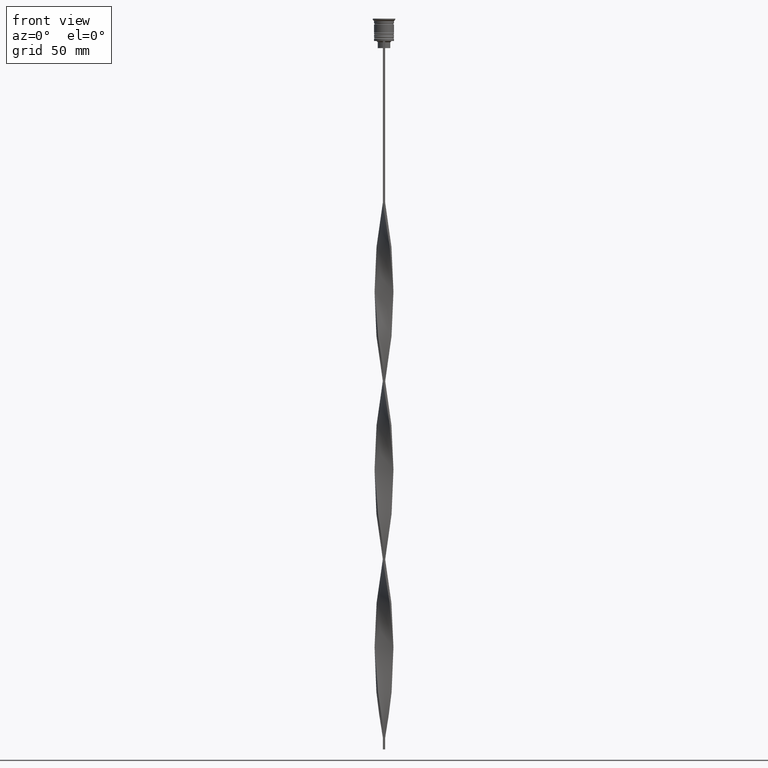
[diagram: clean part render]
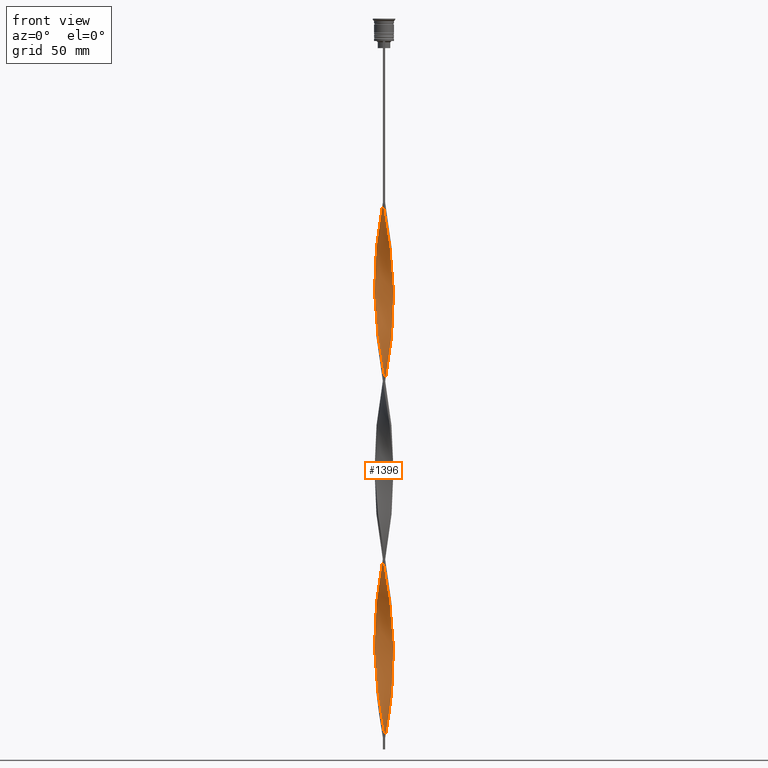
[diagram: same view with one face highlighted and labeled with its STEP entity id]
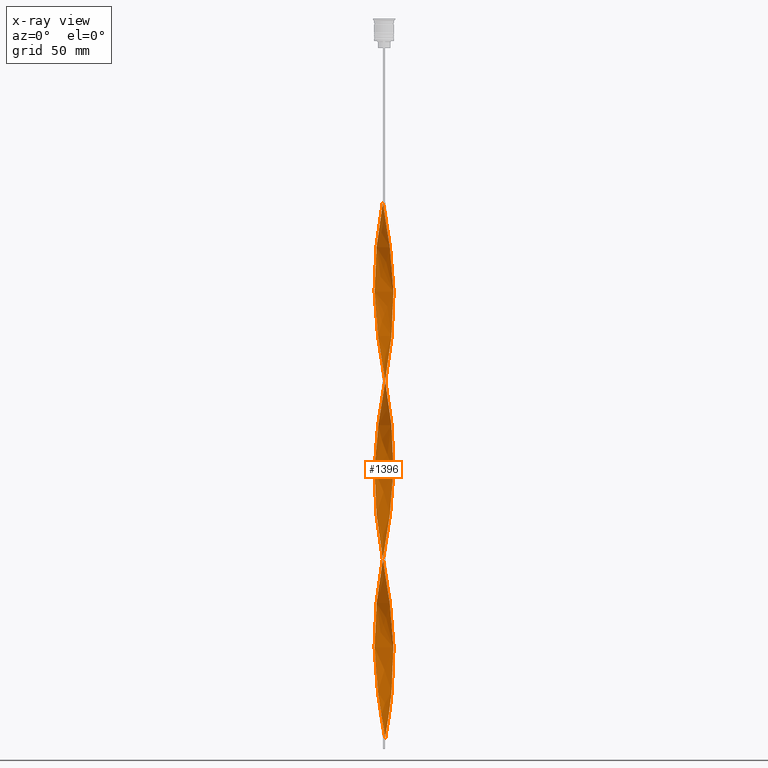
[diagram: x-ray of the same camera — body ghosted, the highlighted face saturated]
A machine part, front view. The second image highlights one B-rep face of the part: STEP entity #1396.
The next image is the same camera in x-ray: the body ghosted, the highlighted face saturated — about 0% of this face is hidden behind the body in this view.
In plain terms, the highlighted face is a freeform B-spline surface patch.
Its self-contained STEP definition (entity closure, byte-faithful):
#7 = CARTESIAN_POINT ( 'NONE',  ( -0.5000000000000000000, 4.000000000000000000, -78.00000000000000000 ) ) ;
#19 = CARTESIAN_POINT ( 'NONE',  ( -1.464052696545050436, -3.755868701344492688, -141.5789473684210407 ) ) ;
#43 = CARTESIAN_POINT ( 'NONE',  ( 1.464052696545052212, 3.755868701344492244, -217.0789473684210407 ) ) ;
#45 = CARTESIAN_POINT ( 'NONE',  ( -4.013708850648581183, -0.5017136063310724259, -115.7500000000000000 ) ) ;
#60 = CARTESIAN_POINT ( 'NONE',  ( -0.8258892559684172241, -3.945618701404880024, -296.5526315789473983 ) ) ;
#62 = CARTESIAN_POINT ( 'NONE',  ( -0.5000000000000000000, 4.000000000000000000, -228.9999999999999716 ) ) ;
#74 = CARTESIAN_POINT ( 'NONE',  ( 3.075191833988900836, -2.606375871620972173, -101.8421052631579045 ) ) ;
#76 = CARTESIAN_POINT ( 'NONE',  ( 1.471668575845525240, -3.767727018166429076, -159.4605263157894797 ) ) ;
#95 = CARTESIAN_POINT ( 'NONE',  ( 3.291162296146090682, -2.351558211267345211, -103.8289473684210407 ) ) ;
#103 = CARTESIAN_POINT ( 'NONE',  ( 1.771706497669051972, 3.620919232200196625, -145.5526315789473699 ) ) ;
#113 = CARTESIAN_POINT ( 'NONE',  ( 0.4989459690400814829, -4.014053836277128973, -83.96052631578946546 ) ) ;
#115 = CARTESIAN_POINT ( 'NONE',  ( -2.851421105456868332, 2.849455681240740557, -244.8947368421052886 ) ) ;
#121 = CARTESIAN_POINT ( 'NONE',  ( 4.000343807327721102, 0.4972418155935313666, -121.7105263157894797 ) ) ;
#132 = CARTESIAN_POINT ( 'NONE',  ( -0.1651977094215738573, 4.027742508751257056, -157.4736842105263293 ) ) ;
#134 = CARTESIAN_POINT ( 'NONE',  ( -3.633328892441398672, -1.777778512611467576, -274.6973684210525448 ) ) ;
#140 = CARTESIAN_POINT ( 'NONE',  ( -3.281536428505399172, -2.341264331166395873, -209.1315789473684390 ) ) ;
#150 = CARTESIAN_POINT ( 'NONE',  ( -3.633328892441399116, 1.777778512611468464, -183.3026315789473699 ) ) ;
#159 = CARTESIAN_POINT ( 'NONE',  ( 4.027627644762845627, -0.1679748646140058199, -117.7368421052631646 ) ) ;
#168 = CARTESIAN_POINT ( 'NONE',  ( 3.768740862115096402, 1.469070316484696548, -278.6710526315789025 ) ) ;
#179 = CARTESIAN_POINT ( 'NONE',  ( 3.281536428505397396, 2.341264331166397206, -133.6315789473684390 ) ) ;
#187 = CARTESIAN_POINT ( 'NONE',  ( 3.475539122107559553, 2.069348470232189374, -282.6447368421052033 ) ) ;
#192 = CARTESIAN_POINT ( 'NONE',  ( -3.754858320186921894, -1.466642081532861797, -121.7105263157894797 ) ) ;
#194 = CARTESIAN_POINT ( 'NONE',  ( 4.013708850648581183, -0.5017136063310728700, -266.7499999999999432 ) ) ;
#206 = CARTESIAN_POINT ( 'NONE',  ( 0.8258892559684165580, -3.945618701404880024, -236.9473684210526301 ) ) ;
#213 = CARTESIAN_POINT ( 'NONE',  ( 0.8314494498030657876, -3.958568818774615750, -155.4868421052631504 ) ) ;
#215 = CARTESIAN_POINT ( 'NONE',  ( -3.475539122107559997, 2.069348470232189818, -99.85526315789472562 ) ) ;
#226 = CARTESIAN_POINT ( 'NONE',  ( 2.349288341927600499, -3.292782951704461336, -246.8815789473684390 ) ) ;
#230 = CARTESIAN_POINT ( 'NONE',  ( -3.959141175778332133, 0.8287197540840016696, -107.8026315789473557 ) ) ;
#232 = CARTESIAN_POINT ( 'NONE',  ( -1.471668575845526350, 3.767727018166428632, -83.96052631578946546 ) ) ;
#233 = ORIENTED_EDGE ( 'NONE', *, *, #587, .F. ) ;
#243 = CARTESIAN_POINT ( 'NONE',  ( 4.027627644762845627, -0.1679748646140058199, -268.7368421052631788 ) ) ;
#247 = CARTESIAN_POINT ( 'NONE',  ( 3.087533734903234350, -2.613180192100608146, -171.3815789473684390 ) ) ;
#249 = CARTESIAN_POINT ( 'NONE',  ( 0.1651977094215744957, -4.027742508751256167, -232.9736842105263293 ) ) ;
#267 = CARTESIAN_POINT ( 'NONE',  ( 4.041546438877108294, -0.1657638771030640612, -187.2763157894736707 ) ) ;
#269 = CARTESIAN_POINT ( 'NONE',  ( 3.281536428505397396, 2.341264331166397206, -284.6315789473683822 ) ) ;
#295 = CARTESIAN_POINT ( 'NONE',  ( 4.027627644762845627, 0.1679748646140039048, -189.2631578947368496 ) ) ;
#313 = CARTESIAN_POINT ( 'NONE',  ( -3.633328892441399116, -1.777778512611467576, -274.6973684210526017 ) ) ;
#316 = CARTESIAN_POINT ( 'NONE',  ( -3.462245594293745565, -2.064668361939405727, -125.6842105263157805 ) ) ;
#333 = CARTESIAN_POINT ( 'NONE',  ( -2.349288341927600499, -3.292782951704461336, -286.6184210526315042 ) ) ;
#335 = CARTESIAN_POINT ( 'NONE',  ( 1.151559012824296291, -3.863147918470523301, -157.4736842105263293 ) ) ;
#337 = CARTESIAN_POINT ( 'NONE',  ( -0.5000000000000000000, -4.000000000000000000, -78.00000000000000000 ) ) ;
#358 = CARTESIAN_POINT ( 'NONE',  ( 4.013708850648581183, 0.5017136063310719818, -191.2499999999999432 ) ) ;
#374 = CARTESIAN_POINT ( 'NONE',  ( 3.633328892441399116, -1.777778512611468020, -107.8026315789473557 ) ) ;
#376 = CARTESIAN_POINT ( 'NONE',  ( -2.859221371831710989, -2.861193531974598692, -131.6447368421052602 ) ) ;
#389 = VERTEX_POINT ( 'NONE', #7 ) ;
#390 = CARTESIAN_POINT ( 'NONE',  ( 2.851421105456868776, 2.849455681240740113, -137.6052631578947398 ) ) ;
#393 = CARTESIAN_POINT ( 'NONE',  ( -0.4989459690400829261, -4.014053836277128973, -298.5394736842104635 ) ) ;
#413 = CARTESIAN_POINT ( 'NONE',  ( -4.000343807327721102, -0.4972418155935300343, -197.2105263157894797 ) ) ;
#416 = CARTESIAN_POINT ( 'NONE',  ( -2.604254856879656632, -3.076988241839529348, -284.6315789473683822 ) ) ;
#424 = CARTESIAN_POINT ( 'NONE',  ( 0.1685505501969342679, 4.041431181225382474, -155.4868421052631220 ) ) ;
#435 = CARTESIAN_POINT ( 'NONE',  ( 4.041546438877109182, 0.1657638771030611746, -119.7236842105263150 ) ) ;
#443 = CARTESIAN_POINT ( 'NONE',  ( 1.471668575845527682, 3.767727018166428188, -147.5394736842105203 ) ) ;
#453 = CARTESIAN_POINT ( 'NONE',  ( 3.754858320186921894, -1.466642081532862241, -109.7894736842105203 ) ) ;
#460 = CARTESIAN_POINT ( 'NONE',  ( 1.151559012824297401, 3.863147918470522413, -149.5263157894736707 ) ) ;
#477 = CARTESIAN_POINT ( 'NONE',  ( 4.000343807327721102, 0.4972418155935313666, -272.7105263157894797 ) ) ;
#479 = CARTESIAN_POINT ( 'NONE',  ( -1.152832542896752965, -3.877183566532631076, -294.5657894736841627 ) ) ;
#486 = CARTESIAN_POINT ( 'NONE',  ( -1.775272850193346796, 3.634553836156355633, -167.4078947368420813 ) ) ;
#495 = CARTESIAN_POINT ( 'NONE',  ( 2.615308476010500982, 3.085731170380873412, -290.5921052631578050 ) ) ;
#500 = CARTESIAN_POINT ( 'NONE',  ( 3.876387747932445560, 1.155505650454253352, -195.2236842105263008 ) ) ;
#502 = CARTESIAN_POINT ( 'NONE',  ( 4.041546438877108294, 0.1657638771030611746, -270.7236842105262440 ) ) ;
#510 = CARTESIAN_POINT ( 'NONE',  ( 0.4989459690400814829, -4.014053836277128973, -234.9605263157894228 ) ) ;
#515 = CARTESIAN_POINT ( 'NONE',  ( -1.771706497669051306, 3.620919232200196625, -85.94736842105263008 ) ) ;
#517 = CARTESIAN_POINT ( 'NONE',  ( 1.471668575845527682, 3.767727018166428188, -298.5394736842104635 ) ) ;
#536 = CARTESIAN_POINT ( 'NONE',  ( -3.075191833988901280, -2.606375871620971285, -129.6578947368421098 ) ) ;
#538 = CARTESIAN_POINT ( 'NONE',  ( 1.464052696545049548, -3.755868701344493132, -240.9210526315789309 ) ) ;
#544 = EDGE_CURVE ( 'NONE', #389, #2558, #3769, .T. ) ;
#554 = CARTESIAN_POINT ( 'NONE',  ( 3.075191833988900836, -2.606375871620972173, -252.8421052631579187 ) ) ;
#558 = CARTESIAN_POINT ( 'NONE',  ( -3.633328892441399116, -1.777778512611467576, -123.6973684210526443 ) ) ;
#560 = CARTESIAN_POINT ( 'NONE',  ( 0.8314494498030685632, 3.958568818774615750, -302.5131578947367643 ) ) ;
#577 = CARTESIAN_POINT ( 'NONE',  ( -4.013708850648581183, -0.5017136063310724259, -115.7499999999999858 ) ) ;
#579 = CARTESIAN_POINT ( 'NONE',  ( -0.5000000000000000000, -4.000000000000000000, -228.9999999999999716 ) ) ;
#587 = EDGE_CURVE ( 'NONE', #2433, #2737, #3055, .T. ) ;
#601 = CARTESIAN_POINT ( 'NONE',  ( -1.471668575845526350, 3.767727018166428632, -234.9605263157894228 ) ) ;
#603 = CARTESIAN_POINT ( 'NONE',  ( 3.876387747932445560, 1.155505650454253574, -195.2236842105263008 ) ) ;
#625 = CARTESIAN_POINT ( 'NONE',  ( -4.027627644762845627, -0.1679748646140053203, -264.7631578947368780 ) ) ;
#627 = CARTESIAN_POINT ( 'NONE',  ( 1.152832542896753409, 3.877183566532631520, -219.0657894736841627 ) ) ;
#644 = CARTESIAN_POINT ( 'NONE',  ( -0.1685505501969309927, 4.041431181225382474, -227.0131578947368212 ) ) ;
#646 = CARTESIAN_POINT ( 'NONE',  ( 3.622139992111327533, -1.769209393358443627, -177.3421052631579187 ) ) ;
#653 = CARTESIAN_POINT ( 'NONE',  ( -0.5000000000000000000, -4.000000000000000000, -78.00000000000000000 ) ) ;
#661 = CARTESIAN_POINT ( 'NONE',  ( 0.1651977094215772157, 4.027742508751256167, -225.0263157894736992 ) ) ;
#685 = CARTESIAN_POINT ( 'NONE',  ( -2.343526447751538733, 3.279921308307419903, -240.9210526315789309 ) ) ;
#687 = CARTESIAN_POINT ( 'NONE',  ( 3.754858320186922338, 1.466642081532860464, -197.2105263157894797 ) ) ;
#700 = CARTESIAN_POINT ( 'NONE',  ( -4.041546438877109182, -0.1657638771030590097, -195.2236842105263008 ) ) ;
#702 = CARTESIAN_POINT ( 'NONE',  ( -2.859221371831710989, -2.861193531974598692, -282.6447368421052033 ) ) ;
#717 = CARTESIAN_POINT ( 'NONE',  ( -3.462245594293744677, 2.064668361939407948, -181.3157894736842195 ) ) ;
#726 = CARTESIAN_POINT ( 'NONE',  ( 3.622139992111327977, 1.769209393358442517, -129.6578947368421098 ) ) ;
#738 = CARTESIAN_POINT ( 'NONE',  ( 2.615308476010500982, 3.085731170380873412, -139.5921052631579187 ) ) ;
#740 = CARTESIAN_POINT ( 'NONE',  ( -0.8258892559684172241, -3.945618701404880024, -296.5526315789473983 ) ) ;
#741 = ORIENTED_EDGE ( 'NONE', *, *, #896, .F. ) ;
#747 = CARTESIAN_POINT ( 'NONE',  ( -3.863941018946714490, -1.148895035284349442, -201.1842105263158089 ) ) ;
#758 = CARTESIAN_POINT ( 'NONE',  ( 2.071744419492577816, 3.474111446233965061, -143.5657894736841911 ) ) ;
#760 = CARTESIAN_POINT ( 'NONE',  ( 0.4999999999999994449, -4.000000000000000000, -304.5000000000000000 ) ) ;
#767 = CARTESIAN_POINT ( 'NONE',  ( 1.152832542896750967, -3.877183566532631520, -87.93421052631578050 ) ) ;
#777 = CARTESIAN_POINT ( 'NONE',  ( 0.8258892559684165580, -3.945618701404880024, -85.94736842105263008 ) ) ;
#779 = CARTESIAN_POINT ( 'NONE',  ( -4.041546438877107406, 0.1657638771030618408, -262.7763157894735855 ) ) ;
#785 = CARTESIAN_POINT ( 'NONE',  ( -4.041546438877108294, -0.1657638771030589819, -195.2236842105263008 ) ) ;
#799 = CARTESIAN_POINT ( 'NONE',  ( 3.291162296146090682, -2.351558211267345211, -254.8289473684210407 ) ) ;
#805 = CARTESIAN_POINT ( 'NONE',  ( -1.464052696545050436, -3.755868701344492688, -141.5789473684210407 ) ) ;
#807 = CARTESIAN_POINT ( 'NONE',  ( 4.041546438877108294, 0.1657638771030611746, -119.7236842105263150 ) ) ;
#818 = CARTESIAN_POINT ( 'NONE',  ( -3.768740862115096846, -1.469070316484694327, -203.1710526315789593 ) ) ;
#825 = CARTESIAN_POINT ( 'NONE',  ( -0.8258892559684172241, -3.945618701404880024, -145.5526315789473699 ) ) ;
#827 = CARTESIAN_POINT ( 'NONE',  ( 2.349288341927600499, -3.292782951704461780, -246.8815789473684674 ) ) ;
#837 = CARTESIAN_POINT ( 'NONE',  ( -2.343526447751540953, -3.279921308307418126, -217.0789473684210407 ) ) ;
#842 = CARTESIAN_POINT ( 'NONE',  ( 3.475539122107559109, -2.069348470232190262, -175.3552631578947398 ) ) ;
#845 = CARTESIAN_POINT ( 'NONE',  ( -1.151559012824296735, 3.863147918470522413, -81.97368421052631504 ) ) ;
#860 = CARTESIAN_POINT ( 'NONE',  ( -1.471668575845526794, -3.767727018166428188, -223.0394736842104919 ) ) ;
#866 = CARTESIAN_POINT ( 'NONE',  ( -1.151559012824296735, 3.863147918470522413, -81.97368421052631504 ) ) ;
#868 = CARTESIAN_POINT ( 'NONE',  ( 3.754858320186921894, -1.466642081532862241, -260.7894736842105203 ) ) ;
#879 = CARTESIAN_POINT ( 'NONE',  ( -2.615308476010501426, -3.085731170380873412, -215.0921052631578902 ) ) ;
#884 = CARTESIAN_POINT ( 'NONE',  ( -2.062280596060475091, -3.463668393930408040, -137.6052631578947398 ) ) ;
#886 = CARTESIAN_POINT ( 'NONE',  ( -4.041546438877107406, 0.1657638771030618408, -111.7763157894736850 ) ) ;
#896 = EDGE_CURVE ( 'NONE', #2737, #2558, #2272, .T. ) ;
#905 = CARTESIAN_POINT ( 'NONE',  ( 3.475539122107559997, 2.069348470232189818, -282.6447368421052033 ) ) ;
#925 = CARTESIAN_POINT ( 'NONE',  ( -3.876387747932445116, -1.155505650454255795, -119.7236842105263150 ) ) ;
#945 = CARTESIAN_POINT ( 'NONE',  ( 2.349288341927602719, 3.292782951704460448, -211.1184210526315326 ) ) ;
#947 = CARTESIAN_POINT ( 'NONE',  ( 3.087533734903233906, -2.613180192100608146, -171.3815789473684390 ) ) ;
#963 = CARTESIAN_POINT ( 'NONE',  ( 3.075191833988901724, 2.606375871620970841, -205.1578947368420813 ) ) ;
#965 = CARTESIAN_POINT ( 'NONE',  ( -0.1685505501969309927, 4.041431181225382474, -227.0131578947368212 ) ) ;
#981 = CARTESIAN_POINT ( 'NONE',  ( -1.464052696545050436, -3.755868701344492688, -292.5789473684210407 ) ) ;
#983 = CARTESIAN_POINT ( 'NONE',  ( 2.343526447751538289, -3.279921308307419903, -165.4210526315789593 ) ) ;
#994 = DIRECTION ( 'NONE',  ( 0.000000000000000000, 1.000000000000000000, 0.000000000000000000 ) ) ;
#1004 = CARTESIAN_POINT ( 'NONE',  ( 0.1651977094215744957, -4.027742508751256167, -81.97368421052631504 ) ) ;
#1006 = CARTESIAN_POINT ( 'NONE',  ( 3.863941018946714046, -1.148895035284350996, -181.3157894736842195 ) ) ;
#1023 = CARTESIAN_POINT ( 'NONE',  ( 3.945048299290513150, -0.8286096283926643880, -113.7631578947368496 ) ) ;
#1025 = CARTESIAN_POINT ( 'NONE',  ( -3.945048299290513150, -0.8286096283926639439, -268.7368421052631788 ) ) ;
#1030 = CARTESIAN_POINT ( 'NONE',  ( -4.000343807327721102, -0.4972418155935300343, -197.2105263157894797 ) ) ;
#1040 = CARTESIAN_POINT ( 'NONE',  ( -3.475539122107559997, 2.069348470232189818, -250.8552631578947683 ) ) ;
#1049 = CARTESIAN_POINT ( 'NONE',  ( -0.4989459690400802061, 4.014053836277129861, -159.4605263157894797 ) ) ;
#1062 = CARTESIAN_POINT ( 'NONE',  ( -2.859221371831710101, 2.861193531974599580, -175.3552631578947398 ) ) ;
#1071 = CARTESIAN_POINT ( 'NONE',  ( -3.754858320186921894, 1.466642081532861797, -185.2894736842105203 ) ) ;
#1081 = CARTESIAN_POINT ( 'NONE',  ( 3.959141175778332133, 0.8287197540840012255, -123.6973684210526443 ) ) ;
#1090 = CARTESIAN_POINT ( 'NONE',  ( -3.075191833988900836, 2.606375871620972173, -177.3421052631579187 ) ) ;
#1100 = CARTESIAN_POINT ( 'NONE',  ( 3.087533734903234350, 2.613180192100606813, -286.6184210526315042 ) ) ;
#1106 = CARTESIAN_POINT ( 'NONE',  ( -3.462245594293745565, -2.064668361939405727, -125.6842105263157805 ) ) ;
#1108 = CARTESIAN_POINT ( 'NONE',  ( 2.859221371831710989, -2.861193531974598692, -99.85526315789472562 ) ) ;
#1125 = CARTESIAN_POINT ( 'NONE',  ( 1.771706497669051972, 3.620919232200196625, -296.5526315789473983 ) ) ;
#1132 = CARTESIAN_POINT ( 'NONE',  ( 3.291162296146092014, 2.351558211267342990, -203.1710526315789593 ) ) ;
#1134 = CARTESIAN_POINT ( 'NONE',  ( 1.771706497669051972, 3.620919232200196625, -296.5526315789473983 ) ) ;
#1147 = CARTESIAN_POINT ( 'NONE',  ( 3.462245594293745121, -2.064668361939406616, -256.8157894736842195 ) ) ;
#1151 = CARTESIAN_POINT ( 'NONE',  ( -1.775272850193347685, -3.634553836156354745, -139.5921052631579187 ) ) ;
#1153 = CARTESIAN_POINT ( 'NONE',  ( 2.604254856879656188, -3.076988241839530236, -248.8684210526315610 ) ) ;
#1171 = CARTESIAN_POINT ( 'NONE',  ( -0.4989459690400829817, -4.014053836277128973, -147.5394736842105203 ) ) ;
#1173 = CARTESIAN_POINT ( 'NONE',  ( -2.615308476010501426, 3.085731170380873412, -91.90789473684208133 ) ) ;
#1186 = CARTESIAN_POINT ( 'NONE',  ( -1.151559012824299399, -3.863147918470521969, -225.0263157894736992 ) ) ;
#1193 = CARTESIAN_POINT ( 'NONE',  ( 3.959141175778333022, -0.8287197540840021137, -183.3026315789473699 ) ) ;
#1195 = CARTESIAN_POINT ( 'NONE',  ( -3.959141175778332133, 0.8287197540840015586, -107.8026315789473557 ) ) ;
#1212 = CARTESIAN_POINT ( 'NONE',  ( 3.075191833988900836, -2.606375871620972173, -252.8421052631579187 ) ) ;
#1229 = CARTESIAN_POINT ( 'NONE',  ( -2.859221371831710545, -2.861193531974598692, -282.6447368421052033 ) ) ;
#1231 = CARTESIAN_POINT ( 'NONE',  ( 2.062280596060475979, 3.463668393930407596, -213.1052631578947398 ) ) ;
#1255 = CARTESIAN_POINT ( 'NONE',  ( 2.604254856879658409, 3.076988241839528015, -209.1315789473684390 ) ) ;
#1257 = CARTESIAN_POINT ( 'NONE',  ( 0.1685505501969314646, -4.041431181225382474, -151.5131578947368496 ) ) ;
#1263 = FACE_OUTER_BOUND ( 'NONE', #1364, .T. ) ;
#1271 = VECTOR ( 'NONE', #994, 1000.000000000000000 ) ;
#1279 = CARTESIAN_POINT ( 'NONE',  ( -3.291162296146090682, -2.351558211267345211, -278.6710526315789025 ) ) ;
#1281 = CARTESIAN_POINT ( 'NONE',  ( -3.291162296146090682, -2.351558211267345211, -127.6710526315789735 ) ) ;
#1287 = LINE ( 'NONE', #653, #1271 ) ;
#1294 = CARTESIAN_POINT ( 'NONE',  ( 0.1685505501969314646, -4.041431181225382474, -302.5131578947368212 ) ) ;
#1296 = CARTESIAN_POINT ( 'NONE',  ( -1.151559012824296735, 3.863147918470522413, -232.9736842105263293 ) ) ;
#1310 = CARTESIAN_POINT ( 'NONE',  ( 1.471668575845527682, 3.767727018166428188, -147.5394736842105203 ) ) ;
#1313 = CARTESIAN_POINT ( 'NONE',  ( 2.615308476010500538, -3.085731170380873856, -167.4078947368420813 ) ) ;
#1334 = CARTESIAN_POINT ( 'NONE',  ( -0.8258892559684163359, 3.945618701404880913, -161.4473684210526301 ) ) ;
#1341 = CARTESIAN_POINT ( 'NONE',  ( 3.863941018946714934, 1.148895035284348332, -125.6842105263157805 ) ) ;
#1350 = CARTESIAN_POINT ( 'NONE',  ( 4.000343807327721102, 0.4972418155935313666, -121.7105263157894797 ) ) ;
#1352 = CARTESIAN_POINT ( 'NONE',  ( -3.281536428505396952, 2.341264331166398982, -248.8684210526315610 ) ) ;
#1358 = CARTESIAN_POINT ( 'NONE',  ( 1.464052696545049548, -3.755868701344493132, -89.92105263157894512 ) ) ;
#1364 = EDGE_LOOP ( 'NONE', ( #1991, #2581, #741, #233 ) ) ;
#1368 = CARTESIAN_POINT ( 'NONE',  ( 0.5000000000000005551, 4.000000000000000000, -153.5000000000000000 ) ) ;
#1370 = CARTESIAN_POINT ( 'NONE',  ( -2.349288341927600499, -3.292782951704461780, -286.6184210526315042 ) ) ;
#1378 = CARTESIAN_POINT ( 'NONE',  ( -4.013708850648581183, 0.5017136063310734251, -191.2499999999999432 ) ) ;
#1393 = CARTESIAN_POINT ( 'NONE',  ( 3.876387747932444228, -1.155505650454256017, -111.7763157894736850 ) ) ;
#1396 = ADVANCED_FACE ( 'NONE', ( #1263 ), #3488, .T. ) ;
#1401 = CARTESIAN_POINT ( 'NONE',  ( 2.615308476010501426, 3.085731170380873412, -139.5921052631579187 ) ) ;
#1408 = CARTESIAN_POINT ( 'NONE',  ( 3.959141175778332133, 0.8287197540840012255, -274.6973684210526017 ) ) ;
#1416 = CARTESIAN_POINT ( 'NONE',  ( -2.604254856879654412, 3.076988241839531568, -173.3684210526315610 ) ) ;
#1433 = CARTESIAN_POINT ( 'NONE',  ( 3.863941018946714046, -1.148895035284350996, -181.3157894736842195 ) ) ;
#1435 = CARTESIAN_POINT ( 'NONE',  ( 2.071744419492577371, 3.474111446233965061, -294.5657894736841627 ) ) ;
#1452 = CARTESIAN_POINT ( 'NONE',  ( 1.464052696545049548, -3.755868701344493132, -240.9210526315789309 ) ) ;
#1459 = CARTESIAN_POINT ( 'NONE',  ( -2.343526447751538733, 3.279921308307419903, -89.92105263157894512 ) ) ;
#1461 = CARTESIAN_POINT ( 'NONE',  ( -3.768740862115096402, 1.469070316484696770, -103.8289473684210265 ) ) ;
#1472 = CARTESIAN_POINT ( 'NONE',  ( 4.041546438877109182, 0.1657638771030611746, -270.7236842105263008 ) ) ;
#1477 = CARTESIAN_POINT ( 'NONE',  ( -2.851421105456868332, 2.849455681240740557, -93.89473684210526017 ) ) ;
#1478 = CARTESIAN_POINT ( 'NONE',  ( 3.462245594293745121, -2.064668361939406616, -256.8157894736842195 ) ) ;
#1487 = CARTESIAN_POINT ( 'NONE',  ( -3.622139992111328866, -1.769209393358442073, -205.1578947368420813 ) ) ;
#1491 = CARTESIAN_POINT ( 'NONE',  ( -1.471668575845526350, 3.767727018166428632, -83.96052631578946546 ) ) ;
#1493 = CARTESIAN_POINT ( 'NONE',  ( 2.859221371831710989, -2.861193531974598692, -250.8552631578947683 ) ) ;
#1513 = CARTESIAN_POINT ( 'NONE',  ( -1.152832542896752965, -3.877183566532631076, -294.5657894736841627 ) ) ;
#1516 = CARTESIAN_POINT ( 'NONE',  ( 3.633328892441398672, -1.777778512611468020, -258.8026315789473415 ) ) ;
#1534 = CARTESIAN_POINT ( 'NONE',  ( -2.851421105456868332, 2.849455681240740557, -244.8947368421052886 ) ) ;
#1536 = CARTESIAN_POINT ( 'NONE',  ( -1.775272850193347685, -3.634553836156354745, -139.5921052631579187 ) ) ;
#1556 = CARTESIAN_POINT ( 'NONE',  ( -1.152832542896752965, -3.877183566532631076, -143.5657894736842195 ) ) ;
#1576 = CARTESIAN_POINT ( 'NONE',  ( -3.281536428505396952, 2.341264331166398982, -248.8684210526315610 ) ) ;
#1578 = CARTESIAN_POINT ( 'NONE',  ( 3.768740862115095513, -1.469070316484698990, -179.3289473684210691 ) ) ;
#1596 = CARTESIAN_POINT ( 'NONE',  ( -0.5000000000000000000, 4.000000000000000000, -228.9999999999999716 ) ) ;
#1598 = CARTESIAN_POINT ( 'NONE',  ( 1.775272850193348129, 3.634553836156354745, -215.0921052631578902 ) ) ;
#1612 = CARTESIAN_POINT ( 'NONE',  ( 3.768740862115096402, 1.469070316484696548, -127.6710526315789593 ) ) ;
#1614 = CARTESIAN_POINT ( 'NONE',  ( -2.349288341927600499, -3.292782951704461780, -135.6184210526315610 ) ) ;
#1628 = CARTESIAN_POINT ( 'NONE',  ( 2.343526447751539177, 3.279921308307419459, -141.5789473684210407 ) ) ;
#1637 = CARTESIAN_POINT ( 'NONE',  ( 3.475539122107559997, 2.069348470232189818, -131.6447368421052602 ) ) ;
#1650 = CARTESIAN_POINT ( 'NONE',  ( -1.464052696545049548, 3.755868701344493132, -165.4210526315789593 ) ) ;
#1652 = CARTESIAN_POINT ( 'NONE',  ( -3.462245594293745565, -2.064668361939405727, -276.6842105263158373 ) ) ;
#1660 = CARTESIAN_POINT ( 'NONE',  ( 2.071744419492577371, 3.474111446233965061, -143.5657894736842195 ) ) ;
#1669 = CARTESIAN_POINT ( 'NONE',  ( 2.062280596060474647, -3.463668393930408484, -93.89473684210526017 ) ) ;
#1672 = CARTESIAN_POINT ( 'NONE',  ( 0.4999999999999994449, -4.000000000000000000, -304.5000000000000000 ) ) ;
#1676 = CARTESIAN_POINT ( 'NONE',  ( -2.851421105456868776, -2.849455681240739668, -213.1052631578947398 ) ) ;
#1688 = CARTESIAN_POINT ( 'NONE',  ( 0.1685505501969342401, 4.041431181225382474, -155.4868421052631504 ) ) ;
#1690 = CARTESIAN_POINT ( 'NONE',  ( -3.075191833988901280, -2.606375871620971285, -280.6578947368420813 ) ) ;
#1697 = CARTESIAN_POINT ( 'NONE',  ( -0.1651977094215738573, 4.027742508751257056, -157.4736842105263293 ) ) ;
#1711 = CARTESIAN_POINT ( 'NONE',  ( -3.863941018946714490, -1.148895035284349442, -201.1842105263158089 ) ) ;
#1721 = CARTESIAN_POINT ( 'NONE',  ( 3.291162296146090682, -2.351558211267345211, -103.8289473684210265 ) ) ;
#1731 = CARTESIAN_POINT ( 'NONE',  ( 2.071744419492577816, 3.474111446233965061, -294.5657894736841627 ) ) ;
#1738 = CARTESIAN_POINT ( 'NONE',  ( 3.754858320186922338, 1.466642081532860464, -197.2105263157894797 ) ) ;
#1740 = CARTESIAN_POINT ( 'NONE',  ( 2.615308476010501426, 3.085731170380873412, -290.5921052631577481 ) ) ;
#1749 = CARTESIAN_POINT ( 'NONE',  ( 1.151559012824297401, 3.863147918470522413, -300.5263157894736992 ) ) ;
#1754 = CARTESIAN_POINT ( 'NONE',  ( 0.4999999999999994449, -4.000000000000000000, -153.5000000000000000 ) ) ;
#1756 = CARTESIAN_POINT ( 'NONE',  ( -3.281536428505396952, 2.341264331166398982, -97.86842105263157521 ) ) ;
#1771 = CARTESIAN_POINT ( 'NONE',  ( -2.851421105456868776, -2.849455681240739668, -213.1052631578947398 ) ) ;
#1777 = CARTESIAN_POINT ( 'NONE',  ( -3.622139992111327533, 1.769209393358443627, -101.8421052631579045 ) ) ;
#1779 = CARTESIAN_POINT ( 'NONE',  ( 3.291162296146090682, -2.351558211267345211, -254.8289473684210407 ) ) ;
#1790 = CARTESIAN_POINT ( 'NONE',  ( 3.633328892441399116, -1.777778512611468020, -258.8026315789473415 ) ) ;
#1795 = CARTESIAN_POINT ( 'NONE',  ( 2.615308476010500538, -3.085731170380874300, -167.4078947368420813 ) ) ;
#1797 = CARTESIAN_POINT ( 'NONE',  ( -3.622139992111327533, 1.769209393358443627, -101.8421052631579045 ) ) ;
#1816 = CARTESIAN_POINT ( 'NONE',  ( 4.000343807327721102, -0.4972418155935313666, -185.2894736842105203 ) ) ;
#1818 = CARTESIAN_POINT ( 'NONE',  ( 3.959141175778332133, 0.8287197540840011145, -274.6973684210525448 ) ) ;
#1845 = CARTESIAN_POINT ( 'NONE',  ( -3.462245594293745565, -2.064668361939405727, -276.6842105263158373 ) ) ;
#1847 = CARTESIAN_POINT ( 'NONE',  ( -3.633328892441398672, -1.777778512611467576, -123.6973684210526443 ) ) ;
#1866 = CARTESIAN_POINT ( 'NONE',  ( -3.945048299290513150, -0.8286096283926639439, -268.7368421052631788 ) ) ;
#1868 = CARTESIAN_POINT ( 'NONE',  ( 0.8258892559684176682, 3.945618701404880024, -221.0526315789473983 ) ) ;
#1887 = CARTESIAN_POINT ( 'NONE',  ( -3.075191833988901280, -2.606375871620971285, -280.6578947368420813 ) ) ;
#1889 = CARTESIAN_POINT ( 'NONE',  ( -2.062280596060475091, -3.463668393930408040, -137.6052631578947398 ) ) ;
#1908 = CARTESIAN_POINT ( 'NONE',  ( -1.775272850193347685, -3.634553836156354745, -290.5921052631578050 ) ) ;
#1910 = CARTESIAN_POINT ( 'NONE',  ( -0.8258892559684172241, -3.945618701404880024, -145.5526315789473699 ) ) ;
#1931 = CARTESIAN_POINT ( 'NONE',  ( -0.8314494498030671199, 3.958568818774615750, -230.9868421052631220 ) ) ;
#1933 = CARTESIAN_POINT ( 'NONE',  ( -2.071744419492575595, 3.474111446233965506, -238.9342105263157521 ) ) ;
#1937 = CARTESIAN_POINT ( 'NONE',  ( 0.1651977094215744957, -4.027742508751256167, -81.97368421052631504 ) ) ;
#1948 = CARTESIAN_POINT ( 'NONE',  ( 1.152832542896751189, -3.877183566532631520, -87.93421052631578050 ) ) ;
#1950 = CARTESIAN_POINT ( 'NONE',  ( -2.062280596060475091, -3.463668393930408040, -288.6052631578947398 ) ) ;
#1964 = CARTESIAN_POINT ( 'NONE',  ( 3.622139992111327977, 1.769209393358442517, -129.6578947368421098 ) ) ;
#1973 = CARTESIAN_POINT ( 'NONE',  ( -3.633328892441398672, 1.777778512611468464, -183.3026315789473699 ) ) ;
#1987 = CARTESIAN_POINT ( 'NONE',  ( 1.464052696545049548, -3.755868701344493132, -89.92105263157894512 ) ) ;
#1990 = CARTESIAN_POINT ( 'NONE',  ( -2.615308476010501426, 3.085731170380873412, -242.9078947368421098 ) ) ;
#1991 = ORIENTED_EDGE ( 'NONE', *, *, #3748, .T. ) ;
#1996 = CARTESIAN_POINT ( 'NONE',  ( -3.087533734903235683, -2.613180192100605037, -211.1184210526315326 ) ) ;
#2014 = CARTESIAN_POINT ( 'NONE',  ( 2.062280596060474647, -3.463668393930408484, -93.89473684210526017 ) ) ;
#2026 = CARTESIAN_POINT ( 'NONE',  ( 1.771706497669051972, 3.620919232200196625, -145.5526315789473699 ) ) ;
#2028 = CARTESIAN_POINT ( 'NONE',  ( -1.464052696545050436, -3.755868701344492688, -292.5789473684210407 ) ) ;
#2034 = CARTESIAN_POINT ( 'NONE',  ( 2.604254856879656188, -3.076988241839530236, -97.86842105263157521 ) ) ;
#2048 = CARTESIAN_POINT ( 'NONE',  ( 3.281536428505397396, 2.341264331166397206, -284.6315789473683822 ) ) ;
#2054 = CARTESIAN_POINT ( 'NONE',  ( 1.471668575845525240, -3.767727018166429076, -159.4605263157894797 ) ) ;
#2056 = CARTESIAN_POINT ( 'NONE',  ( -3.959141175778333022, -0.8287197540840007814, -199.1973684210526017 ) ) ;
#2066 = CARTESIAN_POINT ( 'NONE',  ( -3.475539122107559997, -2.069348470232188930, -207.1447368421052317 ) ) ;
#2073 = CARTESIAN_POINT ( 'NONE',  ( -3.876387747932445116, -1.155505650454255573, -119.7236842105263150 ) ) ;
#2075 = CARTESIAN_POINT ( 'NONE',  ( 3.863941018946714934, 1.148895035284348332, -276.6842105263158373 ) ) ;
#2084 = CARTESIAN_POINT ( 'NONE',  ( 2.851421105456868776, 2.849455681240740113, -288.6052631578947398 ) ) ;
#2088 = CARTESIAN_POINT ( 'NONE',  ( 3.622139992111327533, -1.769209393358443627, -177.3421052631579187 ) ) ;
#2090 = CARTESIAN_POINT ( 'NONE',  ( -1.471668575845526794, -3.767727018166428188, -223.0394736842104635 ) ) ;
#2104 = CARTESIAN_POINT ( 'NONE',  ( -3.959141175778333022, -0.8287197540840007814, -199.1973684210526017 ) ) ;
#2110 = CARTESIAN_POINT ( 'NONE',  ( -2.615308476010500982, 3.085731170380873412, -91.90789473684209554 ) ) ;
#2112 = CARTESIAN_POINT ( 'NONE',  ( 0.8258892559684165580, -3.945618701404880024, -236.9473684210526301 ) ) ;
#2131 = CARTESIAN_POINT ( 'NONE',  ( -4.027627644762845627, -0.1679748646140053203, -113.7631578947368496 ) ) ;
#2133 = CARTESIAN_POINT ( 'NONE',  ( 1.775272850193347685, -3.634553836156354745, -242.9078947368421098 ) ) ;
#2150 = CARTESIAN_POINT ( 'NONE',  ( -3.768740862115096402, 1.469070316484696770, -254.8289473684210407 ) ) ;
#2152 = CARTESIAN_POINT ( 'NONE',  ( 0.4989459690400814273, -4.014053836277128973, -234.9605263157894228 ) ) ;
#2177 = CARTESIAN_POINT ( 'NONE',  ( -3.087533734903234350, 2.613180192100606813, -246.8815789473684390 ) ) ;
#2179 = CARTESIAN_POINT ( 'NONE',  ( 3.633328892441399116, 1.777778512611467132, -199.1973684210526017 ) ) ;
#2197 = CARTESIAN_POINT ( 'NONE',  ( 2.859221371831710989, 2.861193531974598248, -207.1447368421052317 ) ) ;
#2199 = CARTESIAN_POINT ( 'NONE',  ( -0.4989459690400829261, -4.014053836277128973, -147.5394736842105203 ) ) ;
#2214 = CARTESIAN_POINT ( 'NONE',  ( -3.863941018946714490, 1.148895035284349442, -256.8157894736842195 ) ) ;
#2217 = CARTESIAN_POINT ( 'NONE',  ( -1.471668575845526350, 3.767727018166428632, -234.9605263157894228 ) ) ;
#2236 = CARTESIAN_POINT ( 'NONE',  ( 2.859221371831710989, 2.861193531974598248, -207.1447368421052317 ) ) ;
#2253 = CARTESIAN_POINT ( 'NONE',  ( -3.945048299290513150, 0.8286096283926659423, -189.2631578947368496 ) ) ;
#2268 = CARTESIAN_POINT ( 'NONE',  ( -2.349288341927599610, 3.292782951704462668, -171.3815789473684390 ) ) ;
#2270 = CARTESIAN_POINT ( 'NONE',  ( -3.291162296146090682, -2.351558211267345211, -278.6710526315789025 ) ) ;
#2272 = B_SPLINE_CURVE_WITH_KNOTS ( 'NONE', 3,
 ( #2981, #2357, #2595, #3858 ),
 .UNSPECIFIED., .F., .F.,
 ( 4, 4 ),
 ( 0.000000000000000000, 1.000000000000000000 ),
 .UNSPECIFIED. ) ;
#2276 = CARTESIAN_POINT ( 'NONE',  ( -3.768740862115096846, -1.469070316484694327, -203.1710526315789309 ) ) ;
#2287 = CARTESIAN_POINT ( 'NONE',  ( 3.281536428505397396, 2.341264331166397206, -133.6315789473684390 ) ) ;
#2289 = CARTESIAN_POINT ( 'NONE',  ( -0.1651977094215750508, -4.027742508751256167, -300.5263157894736992 ) ) ;
#2297 = CARTESIAN_POINT ( 'NONE',  ( 2.851421105456868776, 2.849455681240740113, -137.6052631578947398 ) ) ;
#2310 = CARTESIAN_POINT ( 'NONE',  ( -0.5000000000000000000, -4.000000000000000000, -78.00000000000000000 ) ) ;
#2318 = CARTESIAN_POINT ( 'NONE',  ( -3.945048299290513150, 0.8286096283926659423, -189.2631578947368496 ) ) ;
#2327 = CARTESIAN_POINT ( 'NONE',  ( 2.349288341927600499, -3.292782951704461336, -95.88157894736841058 ) ) ;
#2336 = CARTESIAN_POINT ( 'NONE',  ( -3.876387747932443784, 1.155505650454258459, -187.2763157894736707 ) ) ;
#2344 = CARTESIAN_POINT ( 'NONE',  ( 3.945048299290513150, -0.8286096283926643880, -264.7631578947368780 ) ) ;
#2351 = CARTESIAN_POINT ( 'NONE',  ( -2.859221371831710545, -2.861193531974598692, -131.6447368421052602 ) ) ;
#2353 = CARTESIAN_POINT ( 'NONE',  ( -1.152832542896750079, 3.877183566532631964, -163.4342105263157805 ) ) ;
#2357 = CARTESIAN_POINT ( 'NONE',  ( 0.5000000000000002220, 1.333333333333333481, -304.5000000000000000 ) ) ;
#2370 = CARTESIAN_POINT ( 'NONE',  ( -3.768740862115096402, 1.469070316484696770, -103.8289473684210407 ) ) ;
#2372 = CARTESIAN_POINT ( 'NONE',  ( -0.5000000000000000000, 4.000000000000000000, -78.00000000000000000 ) ) ;
#2386 = CARTESIAN_POINT ( 'NONE',  ( 2.851421105456868332, -2.849455681240740557, -169.3947368421052602 ) ) ;
#2388 = CARTESIAN_POINT ( 'NONE',  ( 1.151559012824297401, 3.863147918470522413, -300.5263157894736992 ) ) ;
#2399 = CARTESIAN_POINT ( 'NONE',  ( 1.775272850193347685, -3.634553836156354745, -242.9078947368421098 ) ) ;
#2405 = CARTESIAN_POINT ( 'NONE',  ( 2.343526447751538289, -3.279921308307419903, -165.4210526315789593 ) ) ;
#2407 = CARTESIAN_POINT ( 'NONE',  ( 3.768740862115096402, 1.469070316484696548, -278.6710526315789025 ) ) ;
#2423 = CARTESIAN_POINT ( 'NONE',  ( 2.859221371831710545, -2.861193531974598692, -250.8552631578947398 ) ) ;
#2429 = CARTESIAN_POINT ( 'NONE',  ( -2.349288341927600499, -3.292782951704461336, -135.6184210526315894 ) ) ;
#2431 = CARTESIAN_POINT ( 'NONE',  ( -4.000343807327721102, 0.4972418155935317552, -109.7894736842105203 ) ) ;
#2433 = VERTEX_POINT ( 'NONE', #337 ) ;
#2451 = CARTESIAN_POINT ( 'NONE',  ( 2.062280596060474647, -3.463668393930408484, -244.8947368421052886 ) ) ;
#2473 = CARTESIAN_POINT ( 'NONE',  ( -3.959141175778332133, 0.8287197540840016696, -258.8026315789473415 ) ) ;
#2475 = CARTESIAN_POINT ( 'NONE',  ( 2.604254856879658409, 3.076988241839528015, -209.1315789473684390 ) ) ;
#2498 = CARTESIAN_POINT ( 'NONE',  ( -4.013708850648581183, -0.5017136063310724259, -266.7499999999999432 ) ) ;
#2500 = CARTESIAN_POINT ( 'NONE',  ( -4.027627644762845627, -0.1679748646140053203, -113.7631578947368496 ) ) ;
#2515 = CARTESIAN_POINT ( 'NONE',  ( -2.071744419492576039, 3.474111446233965506, -238.9342105263157805 ) ) ;
#2517 = CARTESIAN_POINT ( 'NONE',  ( 3.462245594293745121, 2.064668361939406616, -201.1842105263158089 ) ) ;
#2533 = CARTESIAN_POINT ( 'NONE',  ( 4.041546438877107406, -0.1657638771030640612, -187.2763157894736707 ) ) ;
#2537 = CARTESIAN_POINT ( 'NONE',  ( -0.1685505501969329079, -4.041431181225382474, -79.98684210526316463 ) ) ;
#2549 = CARTESIAN_POINT ( 'NONE',  ( -3.754858320186921894, 1.466642081532861797, -185.2894736842105203 ) ) ;
#2551 = CARTESIAN_POINT ( 'NONE',  ( 1.771706497669051084, -3.620919232200197069, -161.4473684210526301 ) ) ;
#2558 = VERTEX_POINT ( 'NONE', #1672 ) ;
#2567 = CARTESIAN_POINT ( 'NONE',  ( 1.775272850193347685, -3.634553836156354745, -91.90789473684209554 ) ) ;
#2569 = CARTESIAN_POINT ( 'NONE',  ( -3.622139992111327533, 1.769209393358443627, -252.8421052631579187 ) ) ;
#2575 = CARTESIAN_POINT ( 'NONE',  ( -1.464052696545049548, 3.755868701344493132, -165.4210526315789593 ) ) ;
#2581 = ORIENTED_EDGE ( 'NONE', *, *, #544, .T. ) ;
#2585 = CARTESIAN_POINT ( 'NONE',  ( 3.087533734903234350, 2.613180192100606813, -135.6184210526315894 ) ) ;
#2587 = CARTESIAN_POINT ( 'NONE',  ( -4.000343807327721102, 0.4972418155935317552, -260.7894736842105203 ) ) ;
#2592 = CARTESIAN_POINT ( 'NONE',  ( 3.633328892441398672, -1.777778512611468020, -107.8026315789473557 ) ) ;
#2595 = CARTESIAN_POINT ( 'NONE',  ( 0.4999999999999997780, -1.333333333333333481, -304.5000000000000000 ) ) ;
#2603 = CARTESIAN_POINT ( 'NONE',  ( -2.062280596060474647, 3.463668393930408929, -169.3947368421052602 ) ) ;
#2615 = CARTESIAN_POINT ( 'NONE',  ( 1.775272850193347685, -3.634553836156354745, -91.90789473684208133 ) ) ;
#2640 = CARTESIAN_POINT ( 'NONE',  ( -2.349288341927599610, 3.292782951704463112, -171.3815789473684390 ) ) ;
#2651 = CARTESIAN_POINT ( 'NONE',  ( -3.087533734903235683, -2.613180192100605037, -211.1184210526315326 ) ) ;
#2657 = CARTESIAN_POINT ( 'NONE',  ( 4.027627644762845627, 0.1679748646140039048, -189.2631578947368496 ) ) ;
#2659 = CARTESIAN_POINT ( 'NONE',  ( 3.087533734903234350, 2.613180192100606813, -135.6184210526315610 ) ) ;
#2667 = CARTESIAN_POINT ( 'NONE',  ( -2.071744419492578260, -3.474111446233964617, -219.0657894736841911 ) ) ;
#2673 = CARTESIAN_POINT ( 'NONE',  ( -0.8314494498030671199, 3.958568818774615750, -79.98684210526316463 ) ) ;
#2675 = CARTESIAN_POINT ( 'NONE',  ( -2.343526447751540953, -3.279921308307418126, -217.0789473684210407 ) ) ;
#2695 = CARTESIAN_POINT ( 'NONE',  ( -0.1651977094215750508, -4.027742508751256167, -149.5263157894736707 ) ) ;
#2697 = CARTESIAN_POINT ( 'NONE',  ( -3.863941018946714490, 1.148895035284349442, -105.8157894736842053 ) ) ;
#2712 = CARTESIAN_POINT ( 'NONE',  ( 2.343526447751539177, 3.279921308307419459, -292.5789473684210407 ) ) ;
#2716 = CARTESIAN_POINT ( 'NONE',  ( -3.475539122107559553, 2.069348470232189374, -99.85526315789472562 ) ) ;
#2718 = CARTESIAN_POINT ( 'NONE',  ( 3.876387747932444228, -1.155505650454256239, -262.7763157894735855 ) ) ;
#2728 = CARTESIAN_POINT ( 'NONE',  ( 4.013708850648581183, -0.5017136063310728700, -266.7499999999999432 ) ) ;
#2732 = CARTESIAN_POINT ( 'NONE',  ( -3.945048299290513150, -0.8286096283926639439, -117.7368421052631646 ) ) ;
#2734 = CARTESIAN_POINT ( 'NONE',  ( 4.027627644762845627, -0.1679748646140058199, -268.7368421052631788 ) ) ;
#2737 = VERTEX_POINT ( 'NONE', #3023 ) ;
#2756 = CARTESIAN_POINT ( 'NONE',  ( -2.062280596060475091, -3.463668393930408040, -288.6052631578947398 ) ) ;
#2758 = CARTESIAN_POINT ( 'NONE',  ( -1.151559012824299399, -3.863147918470521969, -225.0263157894736992 ) ) ;
#2777 = CARTESIAN_POINT ( 'NONE',  ( -0.4989459690400829817, -4.014053836277128973, -298.5394736842104635 ) ) ;
#2779 = CARTESIAN_POINT ( 'NONE',  ( 3.075191833988901724, 2.606375871620970841, -205.1578947368420813 ) ) ;
#2794 = CARTESIAN_POINT ( 'NONE',  ( 0.4999999999999994449, -4.000000000000000000, -304.5000000000000000 ) ) ;
#2796 = CARTESIAN_POINT ( 'NONE',  ( -3.945048299290513150, -0.8286096283926639439, -117.7368421052631646 ) ) ;
#2816 = CARTESIAN_POINT ( 'NONE',  ( -3.622139992111327533, 1.769209393358443627, -252.8421052631579187 ) ) ;
#2818 = CARTESIAN_POINT ( 'NONE',  ( 4.000343807327721102, -0.4972418155935313666, -185.2894736842105203 ) ) ;
#2839 = CARTESIAN_POINT ( 'NONE',  ( 0.4989459690400818714, 4.014053836277128973, -223.0394736842104919 ) ) ;
#2841 = CARTESIAN_POINT ( 'NONE',  ( -3.754858320186921894, -1.466642081532861797, -121.7105263157894797 ) ) ;
#2853 = CARTESIAN_POINT ( 'NONE',  ( -1.775272850193346796, 3.634553836156355633, -167.4078947368420813 ) ) ;
#2855 = CARTESIAN_POINT ( 'NONE',  ( -0.1651977094215750508, -4.027742508751256167, -149.5263157894736707 ) ) ;
#2871 = CARTESIAN_POINT ( 'NONE',  ( 2.604254856879656188, -3.076988241839530236, -97.86842105263157521 ) ) ;
#2879 = CARTESIAN_POINT ( 'NONE',  ( 2.349288341927600499, -3.292782951704461780, -95.88157894736841058 ) ) ;
#2891 = CARTESIAN_POINT ( 'NONE',  ( -3.876387747932443784, 1.155505650454258459, -187.2763157894736707 ) ) ;
#2893 = CARTESIAN_POINT ( 'NONE',  ( -2.343526447751538733, 3.279921308307419903, -240.9210526315789309 ) ) ;
#2899 = CARTESIAN_POINT ( 'NONE',  ( 3.462245594293745121, -2.064668361939406616, -105.8157894736842053 ) ) ;
#2910 = CARTESIAN_POINT ( 'NONE',  ( 4.013708850648581183, -0.5017136063310728700, -115.7499999999999858 ) ) ;
#2912 = CARTESIAN_POINT ( 'NONE',  ( -4.013708850648581183, -0.5017136063310724259, -266.7499999999999432 ) ) ;
#2918 = CARTESIAN_POINT ( 'NONE',  ( 3.876387747932444228, -1.155505650454256239, -111.7763157894736850 ) ) ;
#2927 = CARTESIAN_POINT ( 'NONE',  ( -0.4989459690400802616, 4.014053836277129861, -159.4605263157894797 ) ) ;
#2936 = CARTESIAN_POINT ( 'NONE',  ( 4.013708850648581183, -0.5017136063310728700, -115.7500000000000000 ) ) ;
#2950 = CARTESIAN_POINT ( 'NONE',  ( 2.062280596060474647, -3.463668393930408484, -244.8947368421052886 ) ) ;
#2952 = CARTESIAN_POINT ( 'NONE',  ( -3.876387747932445116, -1.155505650454255795, -270.7236842105262440 ) ) ;
#2959 = CARTESIAN_POINT ( 'NONE',  ( 3.754858320186921894, -1.466642081532862241, -109.7894736842105203 ) ) ;
#2968 = CARTESIAN_POINT ( 'NONE',  ( 1.471668575845527682, 3.767727018166428188, -298.5394736842104635 ) ) ;
#2974 = CARTESIAN_POINT ( 'NONE',  ( 3.633328892441399116, 1.777778512611467132, -199.1973684210526017 ) ) ;
#2976 = CARTESIAN_POINT ( 'NONE',  ( -1.771706497669052194, -3.620919232200196181, -221.0526315789473983 ) ) ;
#2981 = CARTESIAN_POINT ( 'NONE',  ( 0.5000000000000005551, 4.000000000000000000, -304.5000000000000000 ) ) ;
#2996 = CARTESIAN_POINT ( 'NONE',  ( -3.281536428505396952, 2.341264331166398982, -97.86842105263157521 ) ) ;
#2998 = CARTESIAN_POINT ( 'NONE',  ( -0.8314494498030671199, 3.958568818774615750, -79.98684210526316463 ) ) ;
#3010 = CARTESIAN_POINT ( 'NONE',  ( -0.1685505501969328801, -4.041431181225382474, -230.9868421052631220 ) ) ;
#3014 = CARTESIAN_POINT ( 'NONE',  ( -0.5000000000000000000, 4.000000000000000000, -78.00000000000000000 ) ) ;
#3016 = CARTESIAN_POINT ( 'NONE',  ( -1.771706497669051306, 3.620919232200196625, -85.94736842105263008 ) ) ;
#3023 = CARTESIAN_POINT ( 'NONE',  ( 0.5000000000000005551, 4.000000000000000000, -304.5000000000000000 ) ) ;
#3026 = CARTESIAN_POINT ( 'NONE',  ( 3.876387747932444228, -1.155505650454256017, -262.7763157894736423 ) ) ;
#3031 = CARTESIAN_POINT ( 'NONE',  ( -4.041546438877108294, 0.1657638771030618130, -111.7763157894736850 ) ) ;
#3033 = CARTESIAN_POINT ( 'NONE',  ( -2.615308476010501870, -3.085731170380873412, -215.0921052631578902 ) ) ;
#3048 = CARTESIAN_POINT ( 'NONE',  ( -2.071744419492576039, 3.474111446233965506, -87.93421052631578050 ) ) ;
#3050 = CARTESIAN_POINT ( 'NONE',  ( 3.622139992111327977, 1.769209393358442517, -280.6578947368420813 ) ) ;
#3055 =( BOUNDED_CURVE ( )  B_SPLINE_CURVE ( 2, ( #2310, #3848, #1004, #113, #777, #1948, #1987, #2567, #1669, #2327, #2871, #3176, #74, #95, #3473, #374, #453, #1393, #1023, #2910, #3217, #435, #1350, #1081, #3545, #1612, #1964, #3507, #2287, #2585, #390, #738, #1628, #758, #2026, #1310, #3232, #3788, #1368, #1688, #132, #2927, #1334, #3805, #1650, #2853, #2603, #2268, #3827, #1062, #3489, #3527, #717, #150, #2549, #2891, #2253, #3196, #3770, #700, #413, #2104, #1711, #818, #1487, #2066, #3333, #2651, #1771, #879, #837, #2667, #3292, #860, #1186, #3562, #3886, #3010, #3944, #510, #206, #3605, #1452, #2399, #2950, #226, #3249, #2423, #554, #799, #1147, #1790, #3643, #3026, #2344, #2728, #243, #1472, #477, #1408, #3273, #168, #3864, #187, #2048, #1100, #2084, #495, #2712, #1731, #1125, #2968, #1749, #3929, #3310 ),
 .UNSPECIFIED., .F., .T. ) 
 B_SPLINE_CURVE_WITH_KNOTS ( ( 3, 2, 2, 2, 2, 2, 2, 2, 2, 2, 2, 2, 2, 2, 2, 2, 2, 2, 2, 2, 2, 2, 2, 2, 2, 2, 2, 2, 2, 2, 2, 2, 2, 2, 2, 2, 2, 2, 2, 2, 2, 2, 2, 2, 2, 2, 2, 2, 2, 2, 2, 2, 2, 2, 2, 2, 2, 3 ),
 ( 0.000000000000000000, 0.01315789473684210453, 0.02631578947368420907, 0.03947368421052631360, 0.05263157894736841813, 0.06578947368421052266, 0.07894736842105262720, 0.09210526315789473173, 0.1052631578947368363, 0.1184210526315789408, 0.1315789473684210453, 0.1447368421052631637, 0.1578947368421052544, 0.1710526315789473728, 0.1842105263157894635, 0.1973684210526315541, 0.2105263157894736725, 0.2236842105263157909, 0.2368421052631578816, 0.2500000000000000000, 0.2631578947368420907, 0.2763157894736842368, 0.2894736842105263275, 0.3026315789473684181, 0.3157894736842105088, 0.3289473684210526550, 0.3421052631578947456, 0.3552631578947368918, 0.3684210526315789269, 0.3815789473684210731, 0.3947368421052631082, 0.4078947368421052544, 0.4210526315789473450, 0.4342105263157895467, 0.4473684210526315819, 0.4605263157894736725, 0.4736842105263157632, 0.4868421052631579093, 0.5000000000000000000, 0.5131578947368421462, 0.5263157894736841813, 0.5394736842105263275, 0.5526315789473684736, 0.5657894736842105088, 0.5789473684210526550, 0.5921052631578946901, 0.6052631578947368363, 0.6184210526315789824, 0.6315789473684210176, 0.6447368421052631637, 0.6578947368421053099, 0.6710526315789473450, 0.6842105263157894912, 0.6973684210526315264, 0.7105263157894737835, 0.7236842105263158187, 0.7368421052631578538, 0.7500000000000000000 ),
 .UNSPECIFIED. ) 
 CURVE ( )  GEOMETRIC_REPRESENTATION_ITEM ( )  RATIONAL_B_SPLINE_CURVE ( ( 1.000000000000000000, 0.9965844930066698470, 1.000000000000000000, 0.9965844930066698470, 1.000000000000000000, 0.9965844930066698470, 1.000000000000000000, 0.9965844930066698470, 1.000000000000000000, 0.9965844930066698470, 1.000000000000000000, 0.9965844930066698470, 1.000000000000000000, 0.9965844930066698470, 1.000000000000000000, 0.9965844930066698470, 1.000000000000000000, 0.9965844930066698470, 1.000000000000000000, 0.9965844930066698470, 1.000000000000000000, 0.9965844930066698470, 1.000000000000000000, 0.9965844930066698470, 1.000000000000000000, 0.9965844930066698470, 1.000000000000000000, 0.9965844930066698470, 1.000000000000000000, 0.9965844930066698470, 1.000000000000000000, 0.9965844930066698470, 1.000000000000000000, 0.9965844930066698470, 1.000000000000000000, 0.9965844930066698470, 1.000000000000000000, 0.9965844930066698470, 1.000000000000000000, 0.9965844930066698470, 1.000000000000000000, 0.9965844930066698470, 1.000000000000000000, 0.9965844930066698470, 1.000000000000000000, 0.9965844930066698470, 1.000000000000000000, 0.9965844930066698470, 1.000000000000000000, 0.9965844930066698470, 1.000000000000000000, 0.9965844930066698470, 1.000000000000000000, 0.9965844930066698470, 1.000000000000000000, 0.9965844930066698470, 1.000000000000000000, 0.9965844930066698470, 1.000000000000000000, 0.9965844930066698470, 1.000000000000000000, 0.9965844930066698470, 1.000000000000000000, 0.9965844930066698470, 1.000000000000000000, 0.9965844930066698470, 1.000000000000000000, 0.9965844930066698470, 1.000000000000000000, 0.9965844930066698470, 1.000000000000000000, 0.9965844930066698470, 1.000000000000000000, 0.9965844930066698470, 1.000000000000000000, 0.9965844930066698470, 1.000000000000000000, 0.9965844930066698470, 1.000000000000000000, 0.9965844930066698470, 1.000000000000000000, 0.9965844930066698470, 1.000000000000000000, 0.9965844930066698470, 1.000000000000000000, 0.9965844930066698470, 1.000000000000000000, 0.9965844930066698470, 1.000000000000000000, 0.9965844930066698470, 1.000000000000000000, 0.9965844930066698470, 1.000000000000000000, 0.9965844930066698470, 1.000000000000000000, 0.9965844930066698470, 1.000000000000000000, 0.9965844930066698470, 1.000000000000000000, 0.9965844930066698470, 1.000000000000000000, 0.9965844930066698470, 1.000000000000000000, 0.9965844930066698470, 1.000000000000000000, 0.9965844930066698470, 1.000000000000000000, 0.9965844930066698470, 1.000000000000000000, 0.9965844930066698470, 1.000000000000000000, 0.9965844930066698470, 1.000000000000000000, 0.9965844930066698470, 1.000000000000000000 ) ) 
 REPRESENTATION_ITEM ( '' )  );
#3076 = CARTESIAN_POINT ( 'NONE',  ( 0.1651977094215772157, 4.027742508751256167, -225.0263157894736992 ) ) ;
#3078 = CARTESIAN_POINT ( 'NONE',  ( -3.075191833988901280, -2.606375871620971285, -129.6578947368421098 ) ) ;
#3098 = CARTESIAN_POINT ( 'NONE',  ( -3.754858320186921894, -1.466642081532861797, -272.7105263157894797 ) ) ;
#3100 = CARTESIAN_POINT ( 'NONE',  ( -0.8314494498030671199, 3.958568818774615750, -230.9868421052631220 ) ) ;
#3116 = CARTESIAN_POINT ( 'NONE',  ( -3.876387747932445116, -1.155505650454255573, -270.7236842105263008 ) ) ;
#3118 = CARTESIAN_POINT ( 'NONE',  ( 0.4989459690400818159, 4.014053836277128973, -223.0394736842104635 ) ) ;
#3141 = CARTESIAN_POINT ( 'NONE',  ( -1.151559012824296735, 3.863147918470522413, -232.9736842105263293 ) ) ;
#3143 = CARTESIAN_POINT ( 'NONE',  ( 3.281536428505396064, -2.341264331166400314, -173.3684210526315610 ) ) ;
#3159 = CARTESIAN_POINT ( 'NONE',  ( 1.152832542896753409, 3.877183566532631520, -219.0657894736841911 ) ) ;
#3161 = CARTESIAN_POINT ( 'NONE',  ( -2.604254856879656632, -3.076988241839529348, -133.6315789473684390 ) ) ;
#3176 = CARTESIAN_POINT ( 'NONE',  ( 2.859221371831710545, -2.861193531974598692, -99.85526315789472562 ) ) ;
#3178 = CARTESIAN_POINT ( 'NONE',  ( -3.959141175778332133, 0.8287197540840015586, -258.8026315789473415 ) ) ;
#3196 = CARTESIAN_POINT ( 'NONE',  ( -4.013708850648581183, 0.5017136063310734251, -191.2499999999999716 ) ) ;
#3198 = CARTESIAN_POINT ( 'NONE',  ( -4.027627644762845627, -0.1679748646140053203, -264.7631578947368780 ) ) ;
#3204 = CARTESIAN_POINT ( 'NONE',  ( 3.959141175778332133, 0.8287197540840011145, -123.6973684210526443 ) ) ;
#3217 = CARTESIAN_POINT ( 'NONE',  ( 4.027627644762845627, -0.1679748646140058199, -117.7368421052631646 ) ) ;
#3219 = CARTESIAN_POINT ( 'NONE',  ( -3.768740862115096402, 1.469070316484696770, -254.8289473684210407 ) ) ;
#3225 = CARTESIAN_POINT ( 'NONE',  ( 3.945048299290513150, -0.8286096283926643880, -113.7631578947368496 ) ) ;
#3232 = CARTESIAN_POINT ( 'NONE',  ( 1.151559012824297401, 3.863147918470522413, -149.5263157894736707 ) ) ;
#3239 = CARTESIAN_POINT ( 'NONE',  ( 2.343526447751539177, 3.279921308307419459, -141.5789473684210407 ) ) ;
#3249 = CARTESIAN_POINT ( 'NONE',  ( 2.604254856879656188, -3.076988241839530236, -248.8684210526315610 ) ) ;
#3251 = CARTESIAN_POINT ( 'NONE',  ( -1.775272850193347685, -3.634553836156354745, -290.5921052631577481 ) ) ;
#3259 = CARTESIAN_POINT ( 'NONE',  ( -0.8258892559684163359, 3.945618701404880913, -161.4473684210526301 ) ) ;
#3273 = CARTESIAN_POINT ( 'NONE',  ( 3.863941018946714934, 1.148895035284348332, -276.6842105263158373 ) ) ;
#3280 = CARTESIAN_POINT ( 'NONE',  ( 3.945048299290513150, 0.8286096283926643880, -193.2368421052631504 ) ) ;
#3282 = CARTESIAN_POINT ( 'NONE',  ( -3.622139992111328866, -1.769209393358442073, -205.1578947368420813 ) ) ;
#3292 = CARTESIAN_POINT ( 'NONE',  ( -1.771706497669052194, -3.620919232200196181, -221.0526315789473983 ) ) ;
#3299 = CARTESIAN_POINT ( 'NONE',  ( -1.152832542896752965, -3.877183566532631076, -143.5657894736841911 ) ) ;
#3302 = CARTESIAN_POINT ( 'NONE',  ( -2.851421105456868332, 2.849455681240740557, -93.89473684210526017 ) ) ;
#3310 = CARTESIAN_POINT ( 'NONE',  ( 0.5000000000000005551, 4.000000000000000000, -304.5000000000000000 ) ) ;
#3316 = CARTESIAN_POINT ( 'NONE',  ( 4.013708850648581183, 0.5017136063310718708, -191.2499999999999716 ) ) ;
#3318 = CARTESIAN_POINT ( 'NONE',  ( -0.8314494498030688963, -3.958568818774615750, -227.0131578947368212 ) ) ;
#3333 = CARTESIAN_POINT ( 'NONE',  ( -3.281536428505399172, -2.341264331166395873, -209.1315789473684390 ) ) ;
#3337 = CARTESIAN_POINT ( 'NONE',  ( -3.087533734903234350, 2.613180192100606813, -95.88157894736841058 ) ) ;
#3339 = CARTESIAN_POINT ( 'NONE',  ( -2.071744419492575595, 3.474111446233965506, -87.93421052631578050 ) ) ;
#3354 = CARTESIAN_POINT ( 'NONE',  ( 0.1685505501969314646, -4.041431181225382474, -151.5131578947368496 ) ) ;
#3356 = CARTESIAN_POINT ( 'NONE',  ( -2.071744419492577816, -3.474111446233964617, -219.0657894736841627 ) ) ;
#3372 = CARTESIAN_POINT ( 'NONE',  ( -4.000343807327721102, 0.4972418155935317552, -260.7894736842105203 ) ) ;
#3374 = CARTESIAN_POINT ( 'NONE',  ( 3.945048299290513150, 0.8286096283926643880, -193.2368421052631504 ) ) ;
#3393 = CARTESIAN_POINT ( 'NONE',  ( -3.475539122107559553, 2.069348470232189374, -250.8552631578947398 ) ) ;
#3395 = CARTESIAN_POINT ( 'NONE',  ( 1.464052696545052212, 3.755868701344492244, -217.0789473684210407 ) ) ;
#3414 = CARTESIAN_POINT ( 'NONE',  ( 2.062280596060475979, 3.463668393930407596, -213.1052631578947398 ) ) ;
#3416 = CARTESIAN_POINT ( 'NONE',  ( 2.071744419492574707, -3.474111446233965950, -163.4342105263157805 ) ) ;
#3435 = CARTESIAN_POINT ( 'NONE',  ( 0.8314494498030657876, -3.958568818774615750, -155.4868421052631220 ) ) ;
#3439 = CARTESIAN_POINT ( 'NONE',  ( 0.4989459690400814273, -4.014053836277128973, -83.96052631578946546 ) ) ;
#3453 = CARTESIAN_POINT ( 'NONE',  ( 0.8258892559684176682, 3.945618701404880024, -221.0526315789473983 ) ) ;
#3455 = CARTESIAN_POINT ( 'NONE',  ( 3.291162296146092014, 2.351558211267342990, -203.1710526315789309 ) ) ;
#3461 = CARTESIAN_POINT ( 'NONE',  ( -0.5000000000000000000, -4.000000000000000000, -78.00000000000000000 ) ) ;
#3473 = CARTESIAN_POINT ( 'NONE',  ( 3.462245594293745121, -2.064668361939406616, -105.8157894736842053 ) ) ;
#3488 =( BOUNDED_SURFACE ( )  B_SPLINE_SURFACE ( 1, 2, ( 
 ( #3461, #2537, #1937, #3439, #3755, #767, #1358, #2615, #2014, #2879, #2034, #1108, #3571, #1721, #2899, #2592, #2959, #2918, #3225, #2936, #159, #807, #121, #3204, #1341, #3812, #726, #1637, #179, #2659, #2297, #1401, #3239, #1660, #103, #443, #460, #3535, #3837, #424, #1697, #1049, #3259, #2353, #2575, #486, #3516, #2640, #1416, #3855, #1090, #3875, #3795, #1973, #1071, #2336, #2318, #1378, #3554, #785, #1030, #2056, #747, #2276, #3282, #3497, #140, #1996, #1676, #3033, #2675, #3356, #2976, #2090, #2758, #3318, #579, #3896, #249, #2152, #2112, #3918, #538, #2133, #2451, #827, #1153, #1493, #1212, #1779, #1478, #1516, #868, #2718, #3651, #194, #2734, #502, #3671, #1818, #2075, #2407, #3050, #905, #269, #3595, #3975, #1740, #3953, #1435, #1134, #517, #2388, #560, #3612 ),
 ( #2372, #2998, #845, #232, #3016, #3339, #3934, #1173, #3302, #3631, #1756, #215, #1797, #1461, #2697, #1195, #2431, #886, #2500, #45, #2796, #925, #2841, #1847, #316, #1281, #3078, #376, #3161, #1614, #1889, #1536, #19, #1556, #1910, #2199, #2855, #1257, #3716, #3435, #335, #76, #2551, #3416, #983, #1313, #3692, #947, #3143, #3772, #646, #1578, #1006, #3732, #2818, #2533, #295, #358, #3374, #603, #687, #2179, #2517, #3455, #2779, #2236, #2475, #3994, #1231, #1598, #3395, #627, #1868, #3118, #661, #965, #62, #3100, #1296, #2217, #3750, #1933, #2893, #1990, #115, #3829, #1352, #1040, #2569, #3219, #3790, #3178, #2587, #779, #3198, #2912, #1025, #2952, #3807, #134, #1652, #2270, #1690, #702, #416, #1370, #1950, #3251, #2028, #479, #740, #393, #2289, #3509, #760 ) ),
 .UNSPECIFIED., .F., .F., .F. ) 
 B_SPLINE_SURFACE_WITH_KNOTS ( ( 2, 2 ),
 ( 3, 2, 2, 2, 2, 2, 2, 2, 2, 2, 2, 2, 2, 2, 2, 2, 2, 2, 2, 2, 2, 2, 2, 2, 2, 2, 2, 2, 2, 2, 2, 2, 2, 2, 2, 2, 2, 2, 2, 2, 2, 2, 2, 2, 2, 2, 2, 2, 2, 2, 2, 2, 2, 2, 2, 2, 2, 3 ),
 ( 0.000000000000000000, 1.000000000000000000 ),
 ( 0.000000000000000000, 0.01315789473684210453, 0.02631578947368420907, 0.03947368421052631360, 0.05263157894736841813, 0.06578947368421052266, 0.07894736842105262720, 0.09210526315789473173, 0.1052631578947368363, 0.1184210526315789408, 0.1315789473684210453, 0.1447368421052631637, 0.1578947368421052544, 0.1710526315789473728, 0.1842105263157894635, 0.1973684210526315819, 0.2105263157894736725, 0.2236842105263157909, 0.2368421052631578816, 0.2500000000000000000, 0.2631578947368420907, 0.2763157894736842368, 0.2894736842105263275, 0.3026315789473684181, 0.3157894736842105088, 0.3289473684210526550, 0.3421052631578947456, 0.3552631578947368363, 0.3684210526315789269, 0.3815789473684210731, 0.3947368421052631637, 0.4078947368421052544, 0.4210526315789473450, 0.4342105263157894912, 0.4473684210526315819, 0.4605263157894736725, 0.4736842105263157632, 0.4868421052631579093, 0.5000000000000000000, 0.5131578947368421462, 0.5263157894736841813, 0.5394736842105263275, 0.5526315789473684736, 0.5657894736842105088, 0.5789473684210526550, 0.5921052631578946901, 0.6052631578947368363, 0.6184210526315789824, 0.6315789473684210176, 0.6447368421052631637, 0.6578947368421053099, 0.6710526315789473450, 0.6842105263157894912, 0.6973684210526315264, 0.7105263157894736725, 0.7236842105263158187, 0.7368421052631578538, 0.7500000000000000000 ),
 .UNSPECIFIED. ) 
 GEOMETRIC_REPRESENTATION_ITEM ( )  RATIONAL_B_SPLINE_SURFACE ( (
 ( 1.000000000000000000, 0.9965844930066698470, 1.000000000000000000, 0.9965844930066698470, 1.000000000000000000, 0.9965844930066698470, 1.000000000000000000, 0.9965844930066698470, 1.000000000000000000, 0.9965844930066698470, 1.000000000000000000, 0.9965844930066698470, 1.000000000000000000, 0.9965844930066698470, 1.000000000000000000, 0.9965844930066698470, 1.000000000000000000, 0.9965844930066698470, 1.000000000000000000, 0.9965844930066698470, 1.000000000000000000, 0.9965844930066698470, 1.000000000000000000, 0.9965844930066698470, 1.000000000000000000, 0.9965844930066698470, 1.000000000000000000, 0.9965844930066698470, 1.000000000000000000, 0.9965844930066698470, 1.000000000000000000, 0.9965844930066698470, 1.000000000000000000, 0.9965844930066698470, 1.000000000000000000, 0.9965844930066698470, 1.000000000000000000, 0.9965844930066698470, 1.000000000000000000, 0.9965844930066698470, 1.000000000000000000, 0.9965844930066698470, 1.000000000000000000, 0.9965844930066698470, 1.000000000000000000, 0.9965844930066698470, 1.000000000000000000, 0.9965844930066698470, 1.000000000000000000, 0.9965844930066698470, 1.000000000000000000, 0.9965844930066698470, 1.000000000000000000, 0.9965844930066698470, 1.000000000000000000, 0.9965844930066698470, 1.000000000000000000, 0.9965844930066698470, 1.000000000000000000, 0.9965844930066698470, 1.000000000000000000, 0.9965844930066698470, 1.000000000000000000, 0.9965844930066698470, 1.000000000000000000, 0.9965844930066698470, 1.000000000000000000, 0.9965844930066698470, 1.000000000000000000, 0.9965844930066698470, 1.000000000000000000, 0.9965844930066698470, 1.000000000000000000, 0.9965844930066698470, 1.000000000000000000, 0.9965844930066698470, 1.000000000000000000, 0.9965844930066698470, 1.000000000000000000, 0.9965844930066698470, 1.000000000000000000, 0.9965844930066698470, 1.000000000000000000, 0.9965844930066698470, 1.000000000000000000, 0.9965844930066698470, 1.000000000000000000, 0.9965844930066698470, 1.000000000000000000, 0.9965844930066698470, 1.000000000000000000, 0.9965844930066698470, 1.000000000000000000, 0.9965844930066698470, 1.000000000000000000, 0.9965844930066698470, 1.000000000000000000, 0.9965844930066698470, 1.000000000000000000, 0.9965844930066698470, 1.000000000000000000, 0.9965844930066698470, 1.000000000000000000, 0.9965844930066698470, 1.000000000000000000, 0.9965844930066698470, 1.000000000000000000, 0.9965844930066698470, 1.000000000000000000, 0.9965844930066698470, 1.000000000000000000, 0.9965844930066698470, 1.000000000000000000, 0.9965844930066698470, 1.000000000000000000),
 ( 1.000000000000000000, 0.9965844930066698470, 1.000000000000000000, 0.9965844930066698470, 1.000000000000000000, 0.9965844930066698470, 1.000000000000000000, 0.9965844930066698470, 1.000000000000000000, 0.9965844930066698470, 1.000000000000000000, 0.9965844930066698470, 1.000000000000000000, 0.9965844930066698470, 1.000000000000000000, 0.9965844930066698470, 1.000000000000000000, 0.9965844930066698470, 1.000000000000000000, 0.9965844930066698470, 1.000000000000000000, 0.9965844930066698470, 1.000000000000000000, 0.9965844930066698470, 1.000000000000000000, 0.9965844930066698470, 1.000000000000000000, 0.9965844930066698470, 1.000000000000000000, 0.9965844930066698470, 1.000000000000000000, 0.9965844930066698470, 1.000000000000000000, 0.9965844930066698470, 1.000000000000000000, 0.9965844930066698470, 1.000000000000000000, 0.9965844930066698470, 1.000000000000000000, 0.9965844930066698470, 1.000000000000000000, 0.9965844930066698470, 1.000000000000000000, 0.9965844930066698470, 1.000000000000000000, 0.9965844930066698470, 1.000000000000000000, 0.9965844930066698470, 1.000000000000000000, 0.9965844930066698470, 1.000000000000000000, 0.9965844930066698470, 1.000000000000000000, 0.9965844930066698470, 1.000000000000000000, 0.9965844930066698470, 1.000000000000000000, 0.9965844930066698470, 1.000000000000000000, 0.9965844930066698470, 1.000000000000000000, 0.9965844930066698470, 1.000000000000000000, 0.9965844930066698470, 1.000000000000000000, 0.9965844930066698470, 1.000000000000000000, 0.9965844930066698470, 1.000000000000000000, 0.9965844930066698470, 1.000000000000000000, 0.9965844930066698470, 1.000000000000000000, 0.9965844930066698470, 1.000000000000000000, 0.9965844930066698470, 1.000000000000000000, 0.9965844930066698470, 1.000000000000000000, 0.9965844930066698470, 1.000000000000000000, 0.9965844930066698470, 1.000000000000000000, 0.9965844930066698470, 1.000000000000000000, 0.9965844930066698470, 1.000000000000000000, 0.9965844930066698470, 1.000000000000000000, 0.9965844930066698470, 1.000000000000000000, 0.9965844930066698470, 1.000000000000000000, 0.9965844930066698470, 1.000000000000000000, 0.9965844930066698470, 1.000000000000000000, 0.9965844930066698470, 1.000000000000000000, 0.9965844930066698470, 1.000000000000000000, 0.9965844930066698470, 1.000000000000000000, 0.9965844930066698470, 1.000000000000000000, 0.9965844930066698470, 1.000000000000000000, 0.9965844930066698470, 1.000000000000000000, 0.9965844930066698470, 1.000000000000000000, 0.9965844930066698470, 1.000000000000000000, 0.9965844930066698470, 1.000000000000000000) ) ) 
 REPRESENTATION_ITEM ( '' )  SURFACE ( )  );
#3489 = CARTESIAN_POINT ( 'NONE',  ( -3.075191833988900836, 2.606375871620972173, -177.3421052631579187 ) ) ;
#3497 = CARTESIAN_POINT ( 'NONE',  ( -3.475539122107560441, -2.069348470232189374, -207.1447368421052317 ) ) ;
#3507 = CARTESIAN_POINT ( 'NONE',  ( 3.475539122107559553, 2.069348470232189374, -131.6447368421052602 ) ) ;
#3509 = CARTESIAN_POINT ( 'NONE',  ( 0.1685505501969314646, -4.041431181225382474, -302.5131578947367643 ) ) ;
#3516 = CARTESIAN_POINT ( 'NONE',  ( -2.062280596060474647, 3.463668393930408929, -169.3947368421052602 ) ) ;
#3527 = CARTESIAN_POINT ( 'NONE',  ( -3.291162296146088906, 2.351558211267347431, -179.3289473684210691 ) ) ;
#3535 = CARTESIAN_POINT ( 'NONE',  ( 0.8314494498030685632, 3.958568818774615750, -151.5131578947368496 ) ) ;
#3545 = CARTESIAN_POINT ( 'NONE',  ( 3.863941018946714934, 1.148895035284348332, -125.6842105263157805 ) ) ;
#3554 = CARTESIAN_POINT ( 'NONE',  ( -4.027627644762845627, 0.1679748646140054313, -193.2368421052631504 ) ) ;
#3562 = CARTESIAN_POINT ( 'NONE',  ( -0.8314494498030690073, -3.958568818774615750, -227.0131578947368212 ) ) ;
#3569 = CARTESIAN_POINT ( 'NONE',  ( 3.768740862115095513, -1.469070316484699212, -179.3289473684210691 ) ) ;
#3571 = CARTESIAN_POINT ( 'NONE',  ( 3.075191833988900836, -2.606375871620972173, -101.8421052631579045 ) ) ;
#3593 = CARTESIAN_POINT ( 'NONE',  ( -3.291162296146090682, -2.351558211267345211, -127.6710526315789593 ) ) ;
#3595 = CARTESIAN_POINT ( 'NONE',  ( 3.087533734903234350, 2.613180192100606813, -286.6184210526315042 ) ) ;
#3605 = CARTESIAN_POINT ( 'NONE',  ( 1.152832542896751189, -3.877183566532631520, -238.9342105263157805 ) ) ;
#3610 = CARTESIAN_POINT ( 'NONE',  ( -3.863941018946714490, 1.148895035284349442, -105.8157894736842053 ) ) ;
#3612 = CARTESIAN_POINT ( 'NONE',  ( 0.5000000000000005551, 4.000000000000000000, -304.5000000000000000 ) ) ;
#3629 = CARTESIAN_POINT ( 'NONE',  ( 2.071744419492575151, -3.474111446233965950, -163.4342105263157805 ) ) ;
#3631 = CARTESIAN_POINT ( 'NONE',  ( -3.087533734903234350, 2.613180192100606813, -95.88157894736841058 ) ) ;
#3643 = CARTESIAN_POINT ( 'NONE',  ( 3.754858320186921894, -1.466642081532862241, -260.7894736842105203 ) ) ;
#3649 = CARTESIAN_POINT ( 'NONE',  ( -2.604254856879656632, -3.076988241839529348, -133.6315789473684390 ) ) ;
#3651 = CARTESIAN_POINT ( 'NONE',  ( 3.945048299290513150, -0.8286096283926643880, -264.7631578947368780 ) ) ;
#3669 = CARTESIAN_POINT ( 'NONE',  ( -2.615308476010500982, 3.085731170380873412, -242.9078947368421098 ) ) ;
#3671 = CARTESIAN_POINT ( 'NONE',  ( 4.000343807327721102, 0.4972418155935313666, -272.7105263157894797 ) ) ;
#3690 = CARTESIAN_POINT ( 'NONE',  ( -0.1651977094215750508, -4.027742508751256167, -300.5263157894736992 ) ) ;
#3692 = CARTESIAN_POINT ( 'NONE',  ( 2.851421105456868332, -2.849455681240740557, -169.3947368421052602 ) ) ;
#3714 = CARTESIAN_POINT ( 'NONE',  ( -2.604254856879656632, -3.076988241839529348, -284.6315789473683822 ) ) ;
#3716 = CARTESIAN_POINT ( 'NONE',  ( 0.4999999999999994449, -4.000000000000000000, -153.5000000000000000 ) ) ;
#3732 = CARTESIAN_POINT ( 'NONE',  ( 3.959141175778333022, -0.8287197540840020027, -183.3026315789473699 ) ) ;
#3747 = CARTESIAN_POINT ( 'NONE',  ( -1.771706497669051306, 3.620919232200196625, -236.9473684210526301 ) ) ;
#3748 = EDGE_CURVE ( 'NONE', #2433, #389, #1287, .T. ) ;
#3750 = CARTESIAN_POINT ( 'NONE',  ( -1.771706497669051306, 3.620919232200196625, -236.9473684210526301 ) ) ;
#3755 = CARTESIAN_POINT ( 'NONE',  ( 0.8258892559684165580, -3.945618701404880024, -85.94736842105263008 ) ) ;
#3769 =( BOUNDED_CURVE ( )  B_SPLINE_CURVE ( 2, ( #3014, #2673, #866, #1491, #515, #3048, #1459, #2110, #1477, #3337, #2996, #2716, #1777, #2370, #3610, #230, #3873, #3031, #2131, #577, #2732, #2073, #192, #558, #1106, #3593, #536, #2351, #3649, #2429, #884, #1151, #805, #3299, #825, #1171, #2695, #3354, #1754, #213, #3932, #2054, #3916, #3629, #2405, #1795, #2386, #247, #3950, #842, #2088, #3569, #1433, #1193, #1816, #267, #2657, #3316, #3280, #500, #1738, #2974, #3894, #1132, #963, #2197, #1255, #945, #3414, #3973, #43, #3159, #3453, #2839, #3076, #644, #1596, #1931, #3141, #601, #3747, #2515, #685, #3669, #1534, #2177, #1576, #3393, #2816, #2150, #2214, #2473, #3372, #3992, #625, #2498, #1866, #3116, #3098, #313, #1845, #1279, #1887, #1229, #3714, #333, #2756, #1908, #981, #1513, #60, #2777, #3690, #1294, #2794 ),
 .UNSPECIFIED., .F., .T. ) 
 B_SPLINE_CURVE_WITH_KNOTS ( ( 3, 2, 2, 2, 2, 2, 2, 2, 2, 2, 2, 2, 2, 2, 2, 2, 2, 2, 2, 2, 2, 2, 2, 2, 2, 2, 2, 2, 2, 2, 2, 2, 2, 2, 2, 2, 2, 2, 2, 2, 2, 2, 2, 2, 2, 2, 2, 2, 2, 2, 2, 2, 2, 2, 2, 2, 2, 3 ),
 ( 0.000000000000000000, 0.01315789473684210453, 0.02631578947368420907, 0.03947368421052631360, 0.05263157894736841813, 0.06578947368421052266, 0.07894736842105262720, 0.09210526315789473173, 0.1052631578947368363, 0.1184210526315789408, 0.1315789473684210453, 0.1447368421052631637, 0.1578947368421052544, 0.1710526315789473728, 0.1842105263157894635, 0.1973684210526315541, 0.2105263157894736725, 0.2236842105263157909, 0.2368421052631578816, 0.2500000000000000000, 0.2631578947368420907, 0.2763157894736842368, 0.2894736842105263275, 0.3026315789473684181, 0.3157894736842105088, 0.3289473684210526550, 0.3421052631578947456, 0.3552631578947368918, 0.3684210526315789269, 0.3815789473684210731, 0.3947368421052631082, 0.4078947368421052544, 0.4210526315789473450, 0.4342105263157895467, 0.4473684210526315819, 0.4605263157894736725, 0.4736842105263157632, 0.4868421052631579093, 0.5000000000000000000, 0.5131578947368421462, 0.5263157894736841813, 0.5394736842105263275, 0.5526315789473684736, 0.5657894736842105088, 0.5789473684210526550, 0.5921052631578946901, 0.6052631578947368363, 0.6184210526315789824, 0.6315789473684210176, 0.6447368421052631637, 0.6578947368421053099, 0.6710526315789473450, 0.6842105263157894912, 0.6973684210526315264, 0.7105263157894737835, 0.7236842105263158187, 0.7368421052631578538, 0.7500000000000000000 ),
 .UNSPECIFIED. ) 
 CURVE ( )  GEOMETRIC_REPRESENTATION_ITEM ( )  RATIONAL_B_SPLINE_CURVE ( ( 1.000000000000000000, 0.9965844930066698470, 1.000000000000000000, 0.9965844930066698470, 1.000000000000000000, 0.9965844930066698470, 1.000000000000000000, 0.9965844930066698470, 1.000000000000000000, 0.9965844930066698470, 1.000000000000000000, 0.9965844930066698470, 1.000000000000000000, 0.9965844930066698470, 1.000000000000000000, 0.9965844930066698470, 1.000000000000000000, 0.9965844930066698470, 1.000000000000000000, 0.9965844930066698470, 1.000000000000000000, 0.9965844930066698470, 1.000000000000000000, 0.9965844930066698470, 1.000000000000000000, 0.9965844930066698470, 1.000000000000000000, 0.9965844930066698470, 1.000000000000000000, 0.9965844930066698470, 1.000000000000000000, 0.9965844930066698470, 1.000000000000000000, 0.9965844930066698470, 1.000000000000000000, 0.9965844930066698470, 1.000000000000000000, 0.9965844930066698470, 1.000000000000000000, 0.9965844930066698470, 1.000000000000000000, 0.9965844930066698470, 1.000000000000000000, 0.9965844930066698470, 1.000000000000000000, 0.9965844930066698470, 1.000000000000000000, 0.9965844930066698470, 1.000000000000000000, 0.9965844930066698470, 1.000000000000000000, 0.9965844930066698470, 1.000000000000000000, 0.9965844930066698470, 1.000000000000000000, 0.9965844930066698470, 1.000000000000000000, 0.9965844930066698470, 1.000000000000000000, 0.9965844930066698470, 1.000000000000000000, 0.9965844930066698470, 1.000000000000000000, 0.9965844930066698470, 1.000000000000000000, 0.9965844930066698470, 1.000000000000000000, 0.9965844930066698470, 1.000000000000000000, 0.9965844930066698470, 1.000000000000000000, 0.9965844930066698470, 1.000000000000000000, 0.9965844930066698470, 1.000000000000000000, 0.9965844930066698470, 1.000000000000000000, 0.9965844930066698470, 1.000000000000000000, 0.9965844930066698470, 1.000000000000000000, 0.9965844930066698470, 1.000000000000000000, 0.9965844930066698470, 1.000000000000000000, 0.9965844930066698470, 1.000000000000000000, 0.9965844930066698470, 1.000000000000000000, 0.9965844930066698470, 1.000000000000000000, 0.9965844930066698470, 1.000000000000000000, 0.9965844930066698470, 1.000000000000000000, 0.9965844930066698470, 1.000000000000000000, 0.9965844930066698470, 1.000000000000000000, 0.9965844930066698470, 1.000000000000000000, 0.9965844930066698470, 1.000000000000000000, 0.9965844930066698470, 1.000000000000000000, 0.9965844930066698470, 1.000000000000000000, 0.9965844930066698470, 1.000000000000000000, 0.9965844930066698470, 1.000000000000000000, 0.9965844930066698470, 1.000000000000000000, 0.9965844930066698470, 1.000000000000000000 ) ) 
 REPRESENTATION_ITEM ( '' )  );
#3770 = CARTESIAN_POINT ( 'NONE',  ( -4.027627644762845627, 0.1679748646140054313, -193.2368421052631504 ) ) ;
#3772 = CARTESIAN_POINT ( 'NONE',  ( 3.475539122107559553, -2.069348470232190706, -175.3552631578947398 ) ) ;
#3788 = CARTESIAN_POINT ( 'NONE',  ( 0.8314494498030685632, 3.958568818774615750, -151.5131578947368496 ) ) ;
#3790 = CARTESIAN_POINT ( 'NONE',  ( -3.863941018946714490, 1.148895035284349442, -256.8157894736842195 ) ) ;
#3795 = CARTESIAN_POINT ( 'NONE',  ( -3.462245594293744677, 2.064668361939407948, -181.3157894736842195 ) ) ;
#3805 = CARTESIAN_POINT ( 'NONE',  ( -1.152832542896750301, 3.877183566532631964, -163.4342105263157805 ) ) ;
#3807 = CARTESIAN_POINT ( 'NONE',  ( -3.754858320186921894, -1.466642081532861797, -272.7105263157894797 ) ) ;
#3812 = CARTESIAN_POINT ( 'NONE',  ( 3.768740862115096402, 1.469070316484696548, -127.6710526315789735 ) ) ;
#3827 = CARTESIAN_POINT ( 'NONE',  ( -2.604254856879654412, 3.076988241839531568, -173.3684210526315610 ) ) ;
#3829 = CARTESIAN_POINT ( 'NONE',  ( -3.087533734903234350, 2.613180192100606813, -246.8815789473684674 ) ) ;
#3837 = CARTESIAN_POINT ( 'NONE',  ( 0.5000000000000005551, 4.000000000000000000, -153.5000000000000000 ) ) ;
#3848 = CARTESIAN_POINT ( 'NONE',  ( -0.1685505501969328801, -4.041431181225382474, -79.98684210526316463 ) ) ;
#3855 = CARTESIAN_POINT ( 'NONE',  ( -2.859221371831710545, 2.861193531974599580, -175.3552631578947398 ) ) ;
#3858 = CARTESIAN_POINT ( 'NONE',  ( 0.4999999999999994449, -4.000000000000000000, -304.5000000000000000 ) ) ;
#3864 = CARTESIAN_POINT ( 'NONE',  ( 3.622139992111327977, 1.769209393358442517, -280.6578947368420813 ) ) ;
#3873 = CARTESIAN_POINT ( 'NONE',  ( -4.000343807327721102, 0.4972418155935317552, -109.7894736842105203 ) ) ;
#3875 = CARTESIAN_POINT ( 'NONE',  ( -3.291162296146088906, 2.351558211267347431, -179.3289473684210691 ) ) ;
#3886 = CARTESIAN_POINT ( 'NONE',  ( -0.5000000000000000000, -4.000000000000000000, -228.9999999999999716 ) ) ;
#3894 = CARTESIAN_POINT ( 'NONE',  ( 3.462245594293745121, 2.064668361939406616, -201.1842105263158089 ) ) ;
#3896 = CARTESIAN_POINT ( 'NONE',  ( -0.1685505501969329079, -4.041431181225382474, -230.9868421052631220 ) ) ;
#3916 = CARTESIAN_POINT ( 'NONE',  ( 1.771706497669051084, -3.620919232200197069, -161.4473684210526301 ) ) ;
#3918 = CARTESIAN_POINT ( 'NONE',  ( 1.152832542896750967, -3.877183566532631520, -238.9342105263157521 ) ) ;
#3929 = CARTESIAN_POINT ( 'NONE',  ( 0.8314494498030685632, 3.958568818774615750, -302.5131578947368212 ) ) ;
#3932 = CARTESIAN_POINT ( 'NONE',  ( 1.151559012824296291, -3.863147918470523301, -157.4736842105263293 ) ) ;
#3934 = CARTESIAN_POINT ( 'NONE',  ( -2.343526447751538733, 3.279921308307419903, -89.92105263157894512 ) ) ;
#3944 = CARTESIAN_POINT ( 'NONE',  ( 0.1651977094215744957, -4.027742508751256167, -232.9736842105263293 ) ) ;
#3950 = CARTESIAN_POINT ( 'NONE',  ( 3.281536428505396064, -2.341264331166400314, -173.3684210526315610 ) ) ;
#3953 = CARTESIAN_POINT ( 'NONE',  ( 2.343526447751539177, 3.279921308307419459, -292.5789473684210407 ) ) ;
#3973 = CARTESIAN_POINT ( 'NONE',  ( 1.775272850193348129, 3.634553836156354745, -215.0921052631578902 ) ) ;
#3975 = CARTESIAN_POINT ( 'NONE',  ( 2.851421105456868776, 2.849455681240740113, -288.6052631578947398 ) ) ;
#3992 = CARTESIAN_POINT ( 'NONE',  ( -4.041546438877108294, 0.1657638771030618130, -262.7763157894736423 ) ) ;
#3994 = CARTESIAN_POINT ( 'NONE',  ( 2.349288341927602719, 3.292782951704460892, -211.1184210526315326 ) ) ;